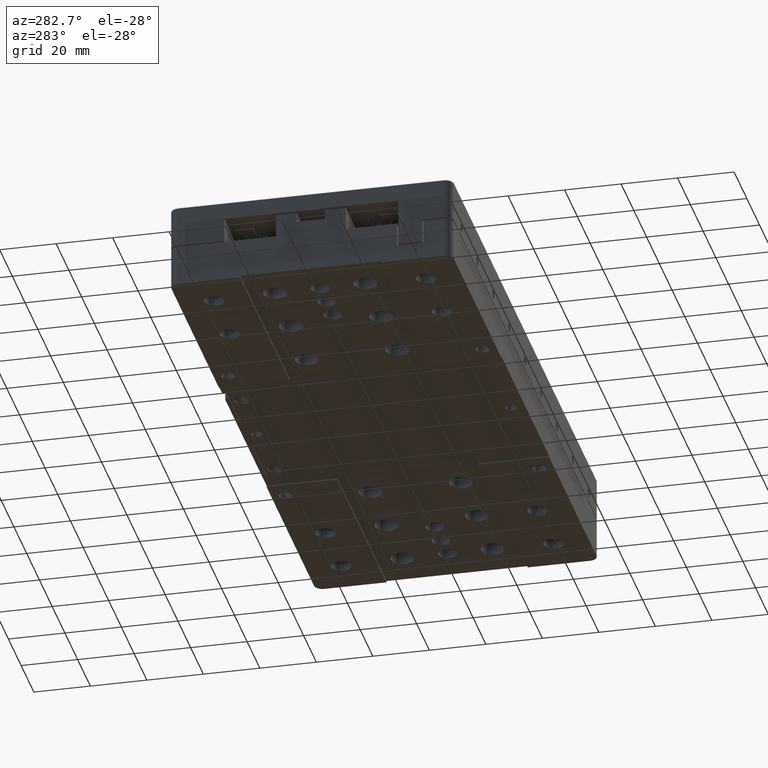
[diagram: clean part render]
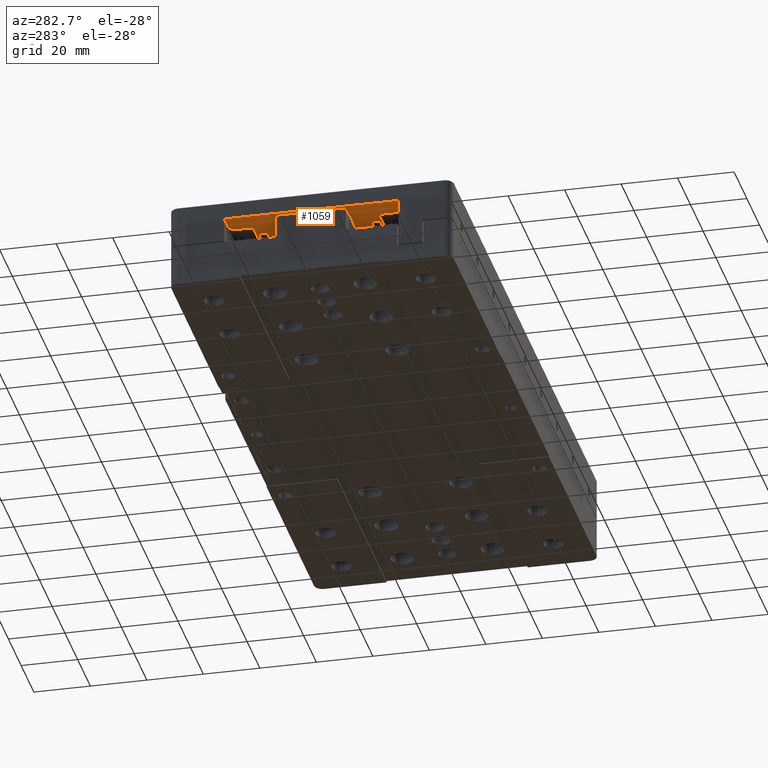
[diagram: same view with one face highlighted and labeled with its STEP entity id]
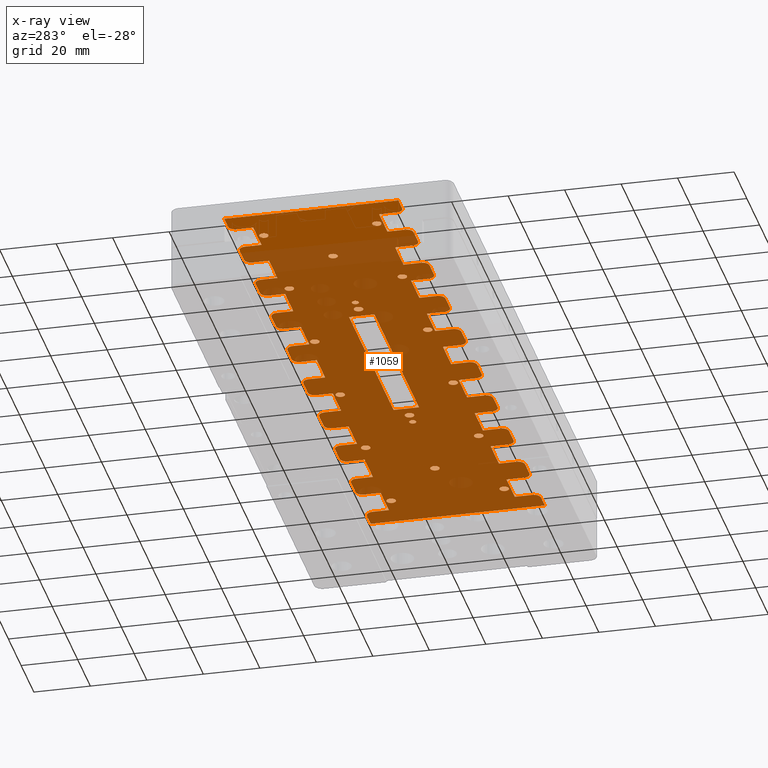
[diagram: x-ray of the same camera — body ghosted, the highlighted face saturated]
A machine part, auxiliary view. The second image highlights one B-rep face of the part: STEP entity #1059.
The next image is the same camera in x-ray: the body ghosted, the highlighted face saturated — about 88% of this face is hidden behind the body in this view.
In plain terms, the highlighted planar face has unit normal (0, 0, -1).
Its self-contained STEP definition (entity closure, byte-faithful):
#18 = LINE ( 'NONE', #21529, #1927 ) ;
#22 = EDGE_CURVE ( 'NONE', #23455, #15507, #9011, .T. ) ;
#27 = DIRECTION ( 'NONE',  ( 0.000000000000000000, 0.000000000000000000, 1.000000000000000000 ) ) ;
#68 = DIRECTION ( 'NONE',  ( -1.000000000000000000, 0.000000000000000000, 0.000000000000000000 ) ) ;
#98 = ORIENTED_EDGE ( 'NONE', *, *, #14441, .T. ) ;
#107 = LINE ( 'NONE', #8944, #10253 ) ;
#122 = EDGE_CURVE ( 'NONE', #9365, #9052, #6889, .T. ) ;
#127 = VERTEX_POINT ( 'NONE', #15840 ) ;
#189 = ORIENTED_EDGE ( 'NONE', *, *, #2611, .T. ) ;
#204 = CARTESIAN_POINT ( 'NONE',  ( 93.50000000000001421, -22.30000000000000071, 9.000000000000001776 ) ) ;
#206 = CIRCLE ( 'NONE', #6590, 2.500000000000002220 ) ;
#238 = DIRECTION ( 'NONE',  ( -1.000000000000000000, 0.000000000000000000, -0.000000000000000000 ) ) ;
#265 = CARTESIAN_POINT ( 'NONE',  ( 41.00000000000000000, -28.50000000000000000, 9.000000000000001776 ) ) ;
#296 = ORIENTED_EDGE ( 'NONE', *, *, #27615, .T. ) ;
#332 = EDGE_CURVE ( 'NONE', #17385, #21648, #14257, .T. ) ;
#352 = EDGE_CURVE ( 'NONE', #10990, #4657, #20627, .T. ) ;
#360 = CARTESIAN_POINT ( 'NONE',  ( -31.50000000000000000, 22.30000000000000071, 9.000000000000001776 ) ) ;
#362 = VECTOR ( 'NONE', #9994, 1000.000000000000000 ) ;
#365 = CARTESIAN_POINT ( 'NONE',  ( -59.00000000000000711, -28.50000000000000000, 9.000000000000001776 ) ) ;
#368 = DIRECTION ( 'NONE',  ( 1.000000000000000000, 0.000000000000000000, 0.000000000000000000 ) ) ;
#389 = LINE ( 'NONE', #9361, #3427 ) ;
#392 = VERTEX_POINT ( 'NONE', #28044 ) ;
#453 = CIRCLE ( 'NONE', #16361, 1.649999999999998579 ) ;
#538 = VERTEX_POINT ( 'NONE', #24342 ) ;
#550 = DIRECTION ( 'NONE',  ( 0.000000000000000000, 0.000000000000000000, 1.000000000000000000 ) ) ;
#557 = CARTESIAN_POINT ( 'NONE',  ( -6.500000000000004441, -22.30000000000000071, 9.000000000000001776 ) ) ;
#630 = EDGE_CURVE ( 'NONE', #3418, #22998, #24322, .T. ) ;
#662 = VECTOR ( 'NONE', #27494, 1000.000000000000000 ) ;
#702 = CIRCLE ( 'NONE', #24383, 2.500000000000002220 ) ;
#707 = ORIENTED_EDGE ( 'NONE', *, *, #18799, .T. ) ;
#769 = EDGE_CURVE ( 'NONE', #13182, #3418, #13206, .T. ) ;
#842 = CARTESIAN_POINT ( 'NONE',  ( -84.00000000000000000, 28.10000000000000497, 9.000000000000001776 ) ) ;
#878 = DIRECTION ( 'NONE',  ( -0.000000000000000000, -1.000000000000000000, -0.000000000000000000 ) ) ;
#898 = ORIENTED_EDGE ( 'NONE', *, *, #2168, .T. ) ;
#901 = AXIS2_PLACEMENT_3D ( 'NONE', #14249, #3853, #19091 ) ;
#930 = CIRCLE ( 'NONE', #22765, 2.500000000000000444 ) ;
#941 = CARTESIAN_POINT ( 'NONE',  ( -115.0000000000000000, 30.60000000000000142, 9.000000000000001776 ) ) ;
#998 = EDGE_CURVE ( 'NONE', #18939, #18939, #8822, .T. ) ;
#1027 = VECTOR ( 'NONE', #11967, 1000.000000000000000 ) ;
#1030 = VERTEX_POINT ( 'NONE', #18742 ) ;
#1034 = LINE ( 'NONE', #27092, #9080 ) ;
#1045 = AXIS2_PLACEMENT_3D ( 'NONE', #10245, #1268, #18508 ) ;
#1059 = ADVANCED_FACE ( 'NONE', ( #24869, #22727, #21173, #3224, #11910, #9764, #25007, #16613, #27556, #22866, #23287, #16745, #18463, #8055, #9900, #27122, #5504, #18598, #3787, #3504 ), #3363, .T. ) ;
#1096 = DIRECTION ( 'NONE',  ( -0.000000000000000000, -1.000000000000000000, -0.000000000000000000 ) ) ;
#1116 = CIRCLE ( 'NONE', #21582, 1.649999999999998579 ) ;
#1173 = VERTEX_POINT ( 'NONE', #6208 ) ;
#1191 = CARTESIAN_POINT ( 'NONE',  ( 45.00000000000000000, 0.000000000000000000, 9.000000000000001776 ) ) ;
#1268 = DIRECTION ( 'NONE',  ( 0.000000000000000000, 0.000000000000000000, -1.000000000000000000 ) ) ;
#1304 = VERTEX_POINT ( 'NONE', #7713 ) ;
#1314 = VECTOR ( 'NONE', #2842, 1000.000000000000000 ) ;
#1318 = VECTOR ( 'NONE', #18420, 1000.000000000000000 ) ;
#1351 = VECTOR ( 'NONE', #26824, 1000.000000000000000 ) ;
#1395 = EDGE_CURVE ( 'NONE', #18982, #17710, #5995, .T. ) ;
#1411 = VECTOR ( 'NONE', #2039, 1000.000000000000000 ) ;
#1418 = CARTESIAN_POINT ( 'NONE',  ( 68.50000000000000000, -28.50000000000000000, 9.000000000000001776 ) ) ;
#1455 = CARTESIAN_POINT ( 'NONE',  ( 106.5000000000000000, 28.10000000000000142, 9.000000000000001776 ) ) ;
#1491 = CARTESIAN_POINT ( 'NONE',  ( -98.35000000000000853, 20.00000000000000000, 9.000000000000001776 ) ) ;
#1512 = CIRCLE ( 'NONE', #4237, 2.500000000000002220 ) ;
#1521 = EDGE_CURVE ( 'NONE', #17222, #17222, #1116, .T. ) ;
#1532 = CARTESIAN_POINT ( 'NONE',  ( 56.50000000000000711, -50.00000000000000000, 9.000000000000001776 ) ) ;
#1538 = CARTESIAN_POINT ( 'NONE',  ( -115.0000000000000000, 22.30000000000000071, 9.000000000000001776 ) ) ;
#1552 = VECTOR ( 'NONE', #2566, 1000.000000000000000 ) ;
#1622 = DIRECTION ( 'NONE',  ( -0.000000000000000000, -1.000000000000000000, -0.000000000000000000 ) ) ;
#1635 = ORIENTED_EDGE ( 'NONE', *, *, #10877, .T. ) ;
#1676 = DIRECTION ( 'NONE',  ( -1.000000000000000000, 0.000000000000000000, 0.000000000000000000 ) ) ;
#1723 = ORIENTED_EDGE ( 'NONE', *, *, #15293, .T. ) ;
#1727 = CARTESIAN_POINT ( 'NONE',  ( -68.50000000000000000, -22.30000000000000071, 9.000000000000001776 ) ) ;
#1748 = LINE ( 'NONE', #10864, #1411 ) ;
#1752 = CARTESIAN_POINT ( 'NONE',  ( -68.50000000000000000, 22.30000000000000071, 9.000000000000001776 ) ) ;
#1758 = ORIENTED_EDGE ( 'NONE', *, *, #6352, .T. ) ;
#1773 = CIRCLE ( 'NONE', #5890, 2.500000000000002220 ) ;
#1784 = CARTESIAN_POINT ( 'NONE',  ( 109.0000000000000000, 28.10000000000000497, 9.000000000000001776 ) ) ;
#1786 = VECTOR ( 'NONE', #9501, 1000.000000000000000 ) ;
#1803 = DIRECTION ( 'NONE',  ( -1.000000000000000000, 0.000000000000000000, -0.000000000000000000 ) ) ;
#1810 = VERTEX_POINT ( 'NONE', #14783 ) ;
#1819 = CIRCLE ( 'NONE', #901, 1.649999999999998579 ) ;
#1864 = VERTEX_POINT ( 'NONE', #18638 ) ;
#1883 = VECTOR ( 'NONE', #11152, 1000.000000000000000 ) ;
#1915 = EDGE_CURVE ( 'NONE', #23801, #8846, #16916, .T. ) ;
#1927 = VECTOR ( 'NONE', #21813, 1000.000000000000000 ) ;
#1938 = DIRECTION ( 'NONE',  ( 0.000000000000000000, 0.000000000000000000, -1.000000000000000000 ) ) ;
#1968 = LINE ( 'NONE', #10653, #6343 ) ;
#1991 = CARTESIAN_POINT ( 'NONE',  ( -115.0000000000000000, 22.30000000000000071, 9.000000000000001776 ) ) ;
#2001 = AXIS2_PLACEMENT_3D ( 'NONE', #15529, #24219, #4855 ) ;
#2039 = DIRECTION ( 'NONE',  ( -1.000000000000000000, 0.000000000000000000, -0.000000000000000000 ) ) ;
#2080 = ORIENTED_EDGE ( 'NONE', *, *, #7572, .T. ) ;
#2091 = ORIENTED_EDGE ( 'NONE', *, *, #3287, .T. ) ;
#2098 = CARTESIAN_POINT ( 'NONE',  ( -81.50000000000000000, -28.50000000000000000, 9.000000000000001776 ) ) ;
#2120 = CARTESIAN_POINT ( 'NONE',  ( 43.75000000000000000, 0.000000000000000000, 9.000000000000001776 ) ) ;
#2168 = EDGE_CURVE ( 'NONE', #13780, #8060, #9329, .T. ) ;
#2208 = CARTESIAN_POINT ( 'NONE',  ( -115.0000000000000000, 4.500000000000003553, 9.000000000000001776 ) ) ;
#2210 = VECTOR ( 'NONE', #1622, 1000.000000000000000 ) ;
#2221 = EDGE_CURVE ( 'NONE', #4857, #25750, #23015, .T. ) ;
#2223 = DIRECTION ( 'NONE',  ( -1.000000000000000000, 0.000000000000000000, 0.000000000000000000 ) ) ;
#2230 = CARTESIAN_POINT ( 'NONE',  ( 115.0000000000000000, 0.000000000000000000, 9.000000000000001776 ) ) ;
#2232 = VECTOR ( 'NONE', #27058, 1000.000000000000000 ) ;
#2299 = EDGE_CURVE ( 'NONE', #7628, #12323, #17069, .T. ) ;
#2343 = EDGE_CURVE ( 'NONE', #14549, #7718, #702, .T. ) ;
#2401 = EDGE_CURVE ( 'NONE', #5867, #26751, #15175, .T. ) ;
#2404 = LINE ( 'NONE', #4399, #17721 ) ;
#2412 = ORIENTED_EDGE ( 'NONE', *, *, #4634, .T. ) ;
#2427 = VERTEX_POINT ( 'NONE', #13880 ) ;
#2470 = CARTESIAN_POINT ( 'NONE',  ( -115.0000000000000000, 22.30000000000000071, 9.000000000000001776 ) ) ;
#2509 = CARTESIAN_POINT ( 'NONE',  ( -31.50000000000000000, 28.10000000000000142, 9.000000000000001776 ) ) ;
#2521 = LINE ( 'NONE', #2230, #7740 ) ;
#2531 = EDGE_CURVE ( 'NONE', #27582, #28079, #11185, .T. ) ;
#2564 = EDGE_LOOP ( 'NONE', ( #14612 ) ) ;
#2566 = DIRECTION ( 'NONE',  ( -1.000000000000000000, 0.000000000000000000, -0.000000000000000000 ) ) ;
#2581 = CARTESIAN_POINT ( 'NONE',  ( 6.500000000000003553, -28.50000000000000000, 9.000000000000001776 ) ) ;
#2611 = EDGE_CURVE ( 'NONE', #6259, #6259, #9797, .T. ) ;
#2677 = LINE ( 'NONE', #13635, #23484 ) ;
#2689 = CARTESIAN_POINT ( 'NONE',  ( -78.35000000000000853, 0.000000000000000000, 9.000000000000001776 ) ) ;
#2745 = DIRECTION ( 'NONE',  ( -1.000000000000000000, 0.000000000000000000, 0.000000000000000000 ) ) ;
#2770 = DIRECTION ( 'NONE',  ( 0.000000000000000000, 0.000000000000000000, -1.000000000000000000 ) ) ;
#2842 = DIRECTION ( 'NONE',  ( -0.000000000000000000, -1.000000000000000000, -0.000000000000000000 ) ) ;
#2868 = DIRECTION ( 'NONE',  ( 1.000000000000000000, 0.000000000000000000, 0.000000000000000000 ) ) ;
#2878 = DIRECTION ( 'NONE',  ( -1.000000000000000000, 0.000000000000000000, -0.000000000000000000 ) ) ;
#2974 = CARTESIAN_POINT ( 'NONE',  ( -56.50000000000000000, -28.50000000000000000, 9.000000000000001776 ) ) ;
#2997 = CARTESIAN_POINT ( 'NONE',  ( -115.0000000000000000, 30.60000000000000142, 9.000000000000001776 ) ) ;
#3018 = EDGE_CURVE ( 'NONE', #20708, #18531, #3686, .T. ) ;
#3037 = LINE ( 'NONE', #11723, #18688 ) ;
#3045 = CARTESIAN_POINT ( 'NONE',  ( 18.50000000000000355, 28.10000000000000142, 9.000000000000001776 ) ) ;
#3072 = CARTESIAN_POINT ( 'NONE',  ( 9.000000000000000000, 30.60000000000000142, 9.000000000000001776 ) ) ;
#3106 = CARTESIAN_POINT ( 'NONE',  ( -31.50000000000000000, -50.00000000000000000, 9.000000000000001776 ) ) ;
#3113 = DIRECTION ( 'NONE',  ( 0.000000000000000000, 1.000000000000000000, 0.000000000000000000 ) ) ;
#3117 = DIRECTION ( 'NONE',  ( 0.000000000000000000, 1.000000000000000000, 0.000000000000000000 ) ) ;
#3124 = ORIENTED_EDGE ( 'NONE', *, *, #27309, .T. ) ;
#3183 = CARTESIAN_POINT ( 'NONE',  ( 18.50000000000000355, -50.00000000000000000, 9.000000000000001776 ) ) ;
#3184 = CARTESIAN_POINT ( 'NONE',  ( -34.00000000000000000, 30.60000000000000142, 9.000000000000001776 ) ) ;
#3189 = CARTESIAN_POINT ( 'NONE',  ( 20.00000000000000000, 20.00000000000000000, 9.000000000000001776 ) ) ;
#3224 = FACE_BOUND ( 'NONE', #6728, .T. ) ;
#3225 = CIRCLE ( 'NONE', #22776, 1.649999999999998579 ) ;
#3229 = ORIENTED_EDGE ( 'NONE', *, *, #26929, .T. ) ;
#3242 = CARTESIAN_POINT ( 'NONE',  ( 31.50000000000001421, -50.00000000000000000, 9.000000000000001776 ) ) ;
#3244 = DIRECTION ( 'NONE',  ( 0.000000000000000000, 1.000000000000000000, 0.000000000000000000 ) ) ;
#3258 = AXIS2_PLACEMENT_3D ( 'NONE', #5620, #27102, #15882 ) ;
#3261 = ORIENTED_EDGE ( 'NONE', *, *, #12059, .T. ) ;
#3263 = CARTESIAN_POINT ( 'NONE',  ( -68.50000000000000000, -50.00000000000000000, 9.000000000000001776 ) ) ;
#3266 = EDGE_LOOP ( 'NONE', ( #12298 ) ) ;
#3287 = EDGE_CURVE ( 'NONE', #23906, #13357, #2677, .T. ) ;
#3321 = ORIENTED_EDGE ( 'NONE', *, *, #23423, .T. ) ;
#3335 = DIRECTION ( 'NONE',  ( -0.000000000000000000, -1.000000000000000000, -0.000000000000000000 ) ) ;
#3353 = CARTESIAN_POINT ( 'NONE',  ( -66.00000000000000000, -28.50000000000000000, 9.000000000000001776 ) ) ;
#3363 = PLANE ( 'NONE',  #9722 ) ;
#3381 = CARTESIAN_POINT ( 'NONE',  ( 56.50000000000000711, 22.30000000000000071, 9.000000000000001776 ) ) ;
#3391 = CARTESIAN_POINT ( 'NONE',  ( 6.500000000000005329, -50.00000000000000000, 9.000000000000001776 ) ) ;
#3394 = EDGE_CURVE ( 'NONE', #4595, #17385, #7105, .T. ) ;
#3395 = DIRECTION ( 'NONE',  ( 1.000000000000000000, -0.000000000000000000, 0.000000000000000000 ) ) ;
#3401 = VECTOR ( 'NONE', #11252, 1000.000000000000000 ) ;
#3418 = VERTEX_POINT ( 'NONE', #5932 ) ;
#3427 = VECTOR ( 'NONE', #7236, 1000.000000000000000 ) ;
#3435 = CARTESIAN_POINT ( 'NONE',  ( -115.0000000000000000, 30.60000000000000142, 9.000000000000001776 ) ) ;
#3477 = LINE ( 'NONE', #22702, #7202 ) ;
#3504 = FACE_OUTER_BOUND ( 'NONE', #18201, .T. ) ;
#3563 = ORIENTED_EDGE ( 'NONE', *, *, #2401, .T. ) ;
#3573 = DIRECTION ( 'NONE',  ( 0.000000000000000000, 0.000000000000000000, -1.000000000000000000 ) ) ;
#3577 = ORIENTED_EDGE ( 'NONE', *, *, #11302, .T. ) ;
#3624 = DIRECTION ( 'NONE',  ( -1.000000000000000000, 0.000000000000000000, 0.000000000000000000 ) ) ;
#3628 = AXIS2_PLACEMENT_3D ( 'NONE', #17767, #28132, #368 ) ;
#3660 = CARTESIAN_POINT ( 'NONE',  ( 9.000000000000001776, -28.50000000000000000, 9.000000000000001776 ) ) ;
#3667 = VERTEX_POINT ( 'NONE', #27141 ) ;
#3686 = LINE ( 'NONE', #16118, #18926 ) ;
#3718 = ORIENTED_EDGE ( 'NONE', *, *, #17010, .T. ) ;
#3720 = CARTESIAN_POINT ( 'NONE',  ( -115.0000000000000000, 30.60000000000000142, 9.000000000000001776 ) ) ;
#3743 = DIRECTION ( 'NONE',  ( 0.000000000000000000, 0.000000000000000000, -1.000000000000000000 ) ) ;
#3787 = FACE_BOUND ( 'NONE', #6438, .T. ) ;
#3817 = CARTESIAN_POINT ( 'NONE',  ( -115.0000000000000000, 30.60000000000000142, 9.000000000000001776 ) ) ;
#3824 = CARTESIAN_POINT ( 'NONE',  ( -41.00000000000000000, 28.10000000000000497, 9.000000000000001776 ) ) ;
#3853 = DIRECTION ( 'NONE',  ( 0.000000000000000000, 0.000000000000000000, 1.000000000000000000 ) ) ;
#3865 = CARTESIAN_POINT ( 'NONE',  ( 43.50000000000000000, -50.00000000000000000, 9.000000000000001776 ) ) ;
#3948 = LINE ( 'NONE', #10771, #17198 ) ;
#3956 = ORIENTED_EDGE ( 'NONE', *, *, #5029, .T. ) ;
#3974 = VECTOR ( 'NONE', #3117, 1000.000000000000000 ) ;
#3995 = DIRECTION ( 'NONE',  ( -0.000000000000000000, -1.000000000000000000, -0.000000000000000000 ) ) ;
#4004 = EDGE_CURVE ( 'NONE', #7486, #17142, #9819, .T. ) ;
#4011 = ORIENTED_EDGE ( 'NONE', *, *, #4444, .T. ) ;
#4019 = DIRECTION ( 'NONE',  ( 1.000000000000000000, -0.000000000000000000, 0.000000000000000000 ) ) ;
#4045 = ORIENTED_EDGE ( 'NONE', *, *, #13705, .T. ) ;
#4072 = VERTEX_POINT ( 'NONE', #1418 ) ;
#4129 = ORIENTED_EDGE ( 'NONE', *, *, #18428, .T. ) ;
#4199 = DIRECTION ( 'NONE',  ( 0.000000000000000000, 0.000000000000000000, -1.000000000000000000 ) ) ;
#4208 = EDGE_CURVE ( 'NONE', #7623, #7623, #17630, .T. ) ;
#4237 = AXIS2_PLACEMENT_3D ( 'NONE', #12557, #3743, #25522 ) ;
#4298 = DIRECTION ( 'NONE',  ( 0.000000000000000000, 0.000000000000000000, -1.000000000000000000 ) ) ;
#4312 = AXIS2_PLACEMENT_3D ( 'NONE', #842, #9535, #26903 ) ;
#4321 = DIRECTION ( 'NONE',  ( -0.000000000000000000, -1.000000000000000000, -0.000000000000000000 ) ) ;
#4350 = CARTESIAN_POINT ( 'NONE',  ( -115.0000000000000000, 22.30000000000000071, 9.000000000000001776 ) ) ;
#4356 = DIRECTION ( 'NONE',  ( 0.000000000000000000, 0.000000000000000000, -1.000000000000000000 ) ) ;
#4374 = LINE ( 'NONE', #11196, #7061 ) ;
#4399 = CARTESIAN_POINT ( 'NONE',  ( -115.0000000000000000, 22.30000000000000071, 9.000000000000001776 ) ) ;
#4444 = EDGE_CURVE ( 'NONE', #18570, #23624, #27431, .T. ) ;
#4536 = ORIENTED_EDGE ( 'NONE', *, *, #19574, .T. ) ;
#4539 = VECTOR ( 'NONE', #19441, 1000.000000000000000 ) ;
#4547 = EDGE_CURVE ( 'NONE', #28079, #15486, #16485, .T. ) ;
#4562 = CARTESIAN_POINT ( 'NONE',  ( 81.50000000000000000, -28.50000000000000000, 9.000000000000001776 ) ) ;
#4595 = VERTEX_POINT ( 'NONE', #13047 ) ;
#4634 = EDGE_CURVE ( 'NONE', #14339, #1304, #21325, .T. ) ;
#4641 = ORIENTED_EDGE ( 'NONE', *, *, #23066, .T. ) ;
#4642 = CARTESIAN_POINT ( 'NONE',  ( -115.0000000000000000, 30.60000000000000142, 9.000000000000001776 ) ) ;
#4657 = VERTEX_POINT ( 'NONE', #6084 ) ;
#4668 = CIRCLE ( 'NONE', #27839, 2.500000000000002220 ) ;
#4680 = EDGE_CURVE ( 'NONE', #1173, #15325, #10630, .T. ) ;
#4683 = DIRECTION ( 'NONE',  ( -1.000000000000000000, 0.000000000000000000, 0.000000000000000000 ) ) ;
#4701 = ORIENTED_EDGE ( 'NONE', *, *, #1395, .T. ) ;
#4722 = VERTEX_POINT ( 'NONE', #11056 ) ;
#4855 = DIRECTION ( 'NONE',  ( -1.000000000000000000, 0.000000000000000000, 0.000000000000000000 ) ) ;
#4857 = VERTEX_POINT ( 'NONE', #9612 ) ;
#4875 = EDGE_CURVE ( 'NONE', #1030, #23589, #24553, .T. ) ;
#4893 = EDGE_CURVE ( 'NONE', #17881, #2427, #22718, .T. ) ;
#4900 = CARTESIAN_POINT ( 'NONE',  ( 106.5000000000000000, -50.00000000000000000, 9.000000000000001776 ) ) ;
#4917 = VECTOR ( 'NONE', #19330, 1000.000000000000000 ) ;
#4928 = AXIS2_PLACEMENT_3D ( 'NONE', #3353, #9891, #26979 ) ;
#4935 = CARTESIAN_POINT ( 'NONE',  ( -109.0000000000000000, 28.10000000000000497, 9.000000000000001776 ) ) ;
#4951 = EDGE_CURVE ( 'NONE', #22633, #17921, #16175, .T. ) ;
#4953 = DIRECTION ( 'NONE',  ( -0.000000000000000000, -1.000000000000000000, -0.000000000000000000 ) ) ;
#4969 = ORIENTED_EDGE ( 'NONE', *, *, #12118, .T. ) ;
#4974 = CARTESIAN_POINT ( 'NONE',  ( -20.00000000000000000, 20.00000000000000000, 9.000000000000001776 ) ) ;
#5015 = DIRECTION ( 'NONE',  ( -1.000000000000000000, 0.000000000000000000, -0.000000000000000000 ) ) ;
#5029 = EDGE_CURVE ( 'NONE', #538, #538, #7707, .T. ) ;
#5109 = AXIS2_PLACEMENT_3D ( 'NONE', #24212, #13378, #9651 ) ;
#5132 = LINE ( 'NONE', #24642, #17386 ) ;
#5148 = VERTEX_POINT ( 'NONE', #20524 ) ;
#5149 = CARTESIAN_POINT ( 'NONE',  ( -91.00000000000000000, -28.50000000000000000, 9.000000000000001776 ) ) ;
#5221 = CARTESIAN_POINT ( 'NONE',  ( -115.0000000000000000, -22.30000000000000071, 9.000000000000001776 ) ) ;
#5245 = VECTOR ( 'NONE', #16324, 1000.000000000000000 ) ;
#5268 = ORIENTED_EDGE ( 'NONE', *, *, #2531, .T. ) ;
#5286 = CARTESIAN_POINT ( 'NONE',  ( -34.00000000000000000, 28.10000000000000497, 9.000000000000001776 ) ) ;
#5300 = EDGE_CURVE ( 'NONE', #9089, #9089, #1819, .T. ) ;
#5311 = LINE ( 'NONE', #4900, #20500 ) ;
#5314 = ORIENTED_EDGE ( 'NONE', *, *, #19927, .T. ) ;
#5366 = VERTEX_POINT ( 'NONE', #27761 ) ;
#5374 = AXIS2_PLACEMENT_3D ( 'NONE', #8631, #24305, #6655 ) ;
#5383 = ORIENTED_EDGE ( 'NONE', *, *, #10186, .T. ) ;
#5419 = CARTESIAN_POINT ( 'NONE',  ( -115.0000000000000000, -22.30000000000000071, 9.000000000000001776 ) ) ;
#5424 = CARTESIAN_POINT ( 'NONE',  ( 91.00000000000000000, 28.10000000000000497, 9.000000000000001776 ) ) ;
#5426 = CARTESIAN_POINT ( 'NONE',  ( 56.50000000000000711, -50.00000000000000000, 9.000000000000001776 ) ) ;
#5471 = VECTOR ( 'NONE', #24534, 1000.000000000000000 ) ;
#5487 = EDGE_CURVE ( 'NONE', #20207, #20207, #453, .T. ) ;
#5495 = CARTESIAN_POINT ( 'NONE',  ( -16.00000000000000000, -28.50000000000000000, 9.000000000000001776 ) ) ;
#5504 = FACE_BOUND ( 'NONE', #10957, .T. ) ;
#5508 = ORIENTED_EDGE ( 'NONE', *, *, #4547, .T. ) ;
#5529 = CARTESIAN_POINT ( 'NONE',  ( 35.00000000000001421, -4.500000000000003553, 9.000000000000001776 ) ) ;
#5532 = VERTEX_POINT ( 'NONE', #4562 ) ;
#5535 = CIRCLE ( 'NONE', #27804, 2.500000000000002220 ) ;
#5563 = DIRECTION ( 'NONE',  ( -1.000000000000000000, 0.000000000000000000, 0.000000000000000000 ) ) ;
#5578 = ORIENTED_EDGE ( 'NONE', *, *, #16800, .T. ) ;
#5582 = EDGE_CURVE ( 'NONE', #25004, #13107, #17805, .T. ) ;
#5591 = ORIENTED_EDGE ( 'NONE', *, *, #2343, .T. ) ;
#5608 = DIRECTION ( 'NONE',  ( 1.000000000000000000, 0.000000000000000000, 0.000000000000000000 ) ) ;
#5620 = CARTESIAN_POINT ( 'NONE',  ( -66.00000000000000000, 28.10000000000000497, 9.000000000000001776 ) ) ;
#5635 = ORIENTED_EDGE ( 'NONE', *, *, #2221, .T. ) ;
#5714 = ORIENTED_EDGE ( 'NONE', *, *, #12580, .T. ) ;
#5724 = CARTESIAN_POINT ( 'NONE',  ( 43.50000000000000000, -50.00000000000000000, 9.000000000000001776 ) ) ;
#5737 = EDGE_CURVE ( 'NONE', #16670, #1173, #20620, .T. ) ;
#5743 = VERTEX_POINT ( 'NONE', #10419 ) ;
#5777 = DIRECTION ( 'NONE',  ( -1.000000000000000000, 0.000000000000000000, -0.000000000000000000 ) ) ;
#5786 = DIRECTION ( 'NONE',  ( -1.000000000000000000, 0.000000000000000000, -0.000000000000000000 ) ) ;
#5801 = VERTEX_POINT ( 'NONE', #25450 ) ;
#5803 = VECTOR ( 'NONE', #1096, 1000.000000000000000 ) ;
#5815 = VERTEX_POINT ( 'NONE', #14208 ) ;
#5843 = VERTEX_POINT ( 'NONE', #2098 ) ;
#5867 = VERTEX_POINT ( 'NONE', #23458 ) ;
#5890 = AXIS2_PLACEMENT_3D ( 'NONE', #8668, #19491, #4683 ) ;
#5892 = ORIENTED_EDGE ( 'NONE', *, *, #9702, .T. ) ;
#5899 = AXIS2_PLACEMENT_3D ( 'NONE', #5495, #12040, #18733 ) ;
#5919 = DIRECTION ( 'NONE',  ( 1.000000000000000000, 0.000000000000000000, 0.000000000000000000 ) ) ;
#5932 = CARTESIAN_POINT ( 'NONE',  ( 93.50000000000000000, -28.50000000000000000, 9.000000000000001776 ) ) ;
#5935 = CARTESIAN_POINT ( 'NONE',  ( -115.0000000000000000, -22.30000000000000071, 9.000000000000001776 ) ) ;
#5964 = ORIENTED_EDGE ( 'NONE', *, *, #17321, .T. ) ;
#5970 = EDGE_CURVE ( 'NONE', #12310, #12310, #18179, .T. ) ;
#5990 = CIRCLE ( 'NONE', #25095, 2.500000000000002220 ) ;
#5994 = CARTESIAN_POINT ( 'NONE',  ( 16.00000000000000000, 28.10000000000000497, 9.000000000000001776 ) ) ;
#5995 = LINE ( 'NONE', #3865, #22475 ) ;
#6001 = CIRCLE ( 'NONE', #15386, 1.649999999999998579 ) ;
#6046 = VECTOR ( 'NONE', #16092, 1000.000000000000000 ) ;
#6050 = EDGE_CURVE ( 'NONE', #7281, #5148, #15625, .T. ) ;
#6084 = CARTESIAN_POINT ( 'NONE',  ( -6.500000000000003553, 28.10000000000000497, 9.000000000000001776 ) ) ;
#6099 = DIRECTION ( 'NONE',  ( 0.000000000000000000, 0.000000000000000000, -1.000000000000000000 ) ) ;
#6193 = CARTESIAN_POINT ( 'NONE',  ( -18.35000000000000142, -20.00000000000000000, 9.000000000000001776 ) ) ;
#6208 = CARTESIAN_POINT ( 'NONE',  ( 6.500000000000005329, -22.30000000000000071, 9.000000000000001776 ) ) ;
#6259 = VERTEX_POINT ( 'NONE', #2120 ) ;
#6269 = CARTESIAN_POINT ( 'NONE',  ( 34.00000000000000711, -31.00000000000000000, 9.000000000000001776 ) ) ;
#6293 = DIRECTION ( 'NONE',  ( -1.000000000000000000, 0.000000000000000000, -0.000000000000000000 ) ) ;
#6307 = CARTESIAN_POINT ( 'NONE',  ( -93.50000000000000000, -22.30000000000000071, 9.000000000000001776 ) ) ;
#6343 = VECTOR ( 'NONE', #19355, 1000.000000000000000 ) ;
#6346 = DIRECTION ( 'NONE',  ( -1.000000000000000000, 0.000000000000000000, 0.000000000000000000 ) ) ;
#6351 = EDGE_CURVE ( 'NONE', #21867, #5532, #16812, .T. ) ;
#6352 = EDGE_CURVE ( 'NONE', #22695, #12212, #25707, .T. ) ;
#6353 = VERTEX_POINT ( 'NONE', #25562 ) ;
#6438 = EDGE_LOOP ( 'NONE', ( #98 ) ) ;
#6497 = DIRECTION ( 'NONE',  ( 0.000000000000000000, 0.000000000000000000, -1.000000000000000000 ) ) ;
#6501 = VERTEX_POINT ( 'NONE', #11461 ) ;
#6515 = CARTESIAN_POINT ( 'NONE',  ( -115.0000000000000000, -22.30000000000000071, 9.000000000000001776 ) ) ;
#6524 = VECTOR ( 'NONE', #18847, 1000.000000000000000 ) ;
#6541 = CARTESIAN_POINT ( 'NONE',  ( 68.49999999999998579, -50.00000000000000000, 9.000000000000001776 ) ) ;
#6554 = VERTEX_POINT ( 'NONE', #26200 ) ;
#6560 = DIRECTION ( 'NONE',  ( 0.000000000000000000, 0.000000000000000000, 1.000000000000000000 ) ) ;
#6573 = ORIENTED_EDGE ( 'NONE', *, *, #5970, .T. ) ;
#6590 = AXIS2_PLACEMENT_3D ( 'NONE', #24271, #2770, #13985 ) ;
#6655 = DIRECTION ( 'NONE',  ( -1.000000000000000000, 0.000000000000000000, 0.000000000000000000 ) ) ;
#6677 = EDGE_CURVE ( 'NONE', #2427, #5843, #1034, .T. ) ;
#6719 = EDGE_LOOP ( 'NONE', ( #3321 ) ) ;
#6728 = EDGE_LOOP ( 'NONE', ( #3956 ) ) ;
#6754 = EDGE_CURVE ( 'NONE', #18486, #22226, #10433, .T. ) ;
#6788 = DIRECTION ( 'NONE',  ( 0.000000000000000000, 0.000000000000000000, -1.000000000000000000 ) ) ;
#6839 = DIRECTION ( 'NONE',  ( -0.000000000000000000, -1.000000000000000000, -0.000000000000000000 ) ) ;
#6887 = EDGE_CURVE ( 'NONE', #16892, #6353, #26243, .T. ) ;
#6889 = LINE ( 'NONE', #24667, #23709 ) ;
#6904 = DIRECTION ( 'NONE',  ( 1.000000000000000000, 0.000000000000000000, 0.000000000000000000 ) ) ;
#6910 = EDGE_CURVE ( 'NONE', #17330, #19664, #26104, .T. ) ;
#6912 = DIRECTION ( 'NONE',  ( -0.000000000000000000, -0.000000000000000000, 1.000000000000000000 ) ) ;
#6976 = LINE ( 'NONE', #11522, #11045 ) ;
#7021 = DIRECTION ( 'NONE',  ( 0.000000000000000000, 0.000000000000000000, 1.000000000000000000 ) ) ;
#7061 = VECTOR ( 'NONE', #17619, 1000.000000000000000 ) ;
#7073 = VERTEX_POINT ( 'NONE', #13203 ) ;
#7105 = LINE ( 'NONE', #23442, #21224 ) ;
#7126 = LINE ( 'NONE', #7391, #1552 ) ;
#7146 = EDGE_LOOP ( 'NONE', ( #27299 ) ) ;
#7202 = VECTOR ( 'NONE', #3335, 1000.000000000000000 ) ;
#7223 = CARTESIAN_POINT ( 'NONE',  ( 93.50000000000001421, 22.30000000000000071, 9.000000000000001776 ) ) ;
#7236 = DIRECTION ( 'NONE',  ( 1.000000000000000000, -0.000000000000000000, 0.000000000000000000 ) ) ;
#7249 = CARTESIAN_POINT ( 'NONE',  ( 109.0000000000000000, -31.00000000000000000, 9.000000000000001776 ) ) ;
#7260 = DIRECTION ( 'NONE',  ( 0.000000000000000000, 0.000000000000000000, -1.000000000000000000 ) ) ;
#7281 = VERTEX_POINT ( 'NONE', #11495 ) ;
#7282 = CARTESIAN_POINT ( 'NONE',  ( 60.00000000000000000, 20.00000000000000000, 9.000000000000001776 ) ) ;
#7391 = CARTESIAN_POINT ( 'NONE',  ( -115.0000000000000000, -31.00000000000000000, 9.000000000000001776 ) ) ;
#7424 = DIRECTION ( 'NONE',  ( 0.000000000000000000, 0.000000000000000000, -1.000000000000000000 ) ) ;
#7427 = DIRECTION ( 'NONE',  ( 0.000000000000000000, 0.000000000000000000, -1.000000000000000000 ) ) ;
#7434 = AXIS2_PLACEMENT_3D ( 'NONE', #25487, #14664, #5563 ) ;
#7443 = VECTOR ( 'NONE', #23220, 1000.000000000000000 ) ;
#7470 = DIRECTION ( 'NONE',  ( -0.000000000000000000, -1.000000000000000000, -0.000000000000000000 ) ) ;
#7486 = VERTEX_POINT ( 'NONE', #23433 ) ;
#7515 = LINE ( 'NONE', #941, #19482 ) ;
#7535 = CARTESIAN_POINT ( 'NONE',  ( -115.0000000000000000, 30.60000000000000142, 9.000000000000001776 ) ) ;
#7557 = VERTEX_POINT ( 'NONE', #16229 ) ;
#7563 = CARTESIAN_POINT ( 'NONE',  ( -84.00000000000000000, -31.00000000000000000, 9.000000000000001776 ) ) ;
#7566 = DIRECTION ( 'NONE',  ( 1.000000000000000000, 0.000000000000000000, 0.000000000000000000 ) ) ;
#7572 = EDGE_CURVE ( 'NONE', #25692, #25692, #3225, .T. ) ;
#7585 = ORIENTED_EDGE ( 'NONE', *, *, #21628, .T. ) ;
#7623 = VERTEX_POINT ( 'NONE', #2689 ) ;
#7628 = VERTEX_POINT ( 'NONE', #1455 ) ;
#7648 = VERTEX_POINT ( 'NONE', #25517 ) ;
#7657 = VERTEX_POINT ( 'NONE', #27643 ) ;
#7707 = CIRCLE ( 'NONE', #15457, 1.649999999999998579 ) ;
#7713 = CARTESIAN_POINT ( 'NONE',  ( 106.5000000000000000, -22.30000000000000071, 9.000000000000001776 ) ) ;
#7718 = VERTEX_POINT ( 'NONE', #10133 ) ;
#7740 = VECTOR ( 'NONE', #20039, 1000.000000000000000 ) ;
#7749 = EDGE_CURVE ( 'NONE', #26148, #6501, #1748, .T. ) ;
#7831 = EDGE_CURVE ( 'NONE', #9393, #24216, #14714, .T. ) ;
#7834 = DIRECTION ( 'NONE',  ( 0.000000000000000000, 1.000000000000000000, 0.000000000000000000 ) ) ;
#7841 = ORIENTED_EDGE ( 'NONE', *, *, #4893, .T. ) ;
#7939 = ORIENTED_EDGE ( 'NONE', *, *, #26881, .T. ) ;
#7995 = LINE ( 'NONE', #11980, #8821 ) ;
#8010 = CARTESIAN_POINT ( 'NONE',  ( 43.50000000000000000, 22.30000000000000071, 9.000000000000001776 ) ) ;
#8055 = FACE_BOUND ( 'NONE', #22881, .T. ) ;
#8056 = EDGE_CURVE ( 'NONE', #12782, #7073, #7995, .T. ) ;
#8060 = VERTEX_POINT ( 'NONE', #20815 ) ;
#8096 = ORIENTED_EDGE ( 'NONE', *, *, #10084, .T. ) ;
#8110 = CARTESIAN_POINT ( 'NONE',  ( -31.50000000000000000, -50.00000000000000000, 9.000000000000001776 ) ) ;
#8130 = EDGE_CURVE ( 'NONE', #9052, #22284, #16113, .T. ) ;
#8138 = EDGE_CURVE ( 'NONE', #23624, #11271, #13367, .T. ) ;
#8148 = ORIENTED_EDGE ( 'NONE', *, *, #13920, .T. ) ;
#8163 = DIRECTION ( 'NONE',  ( -1.000000000000000000, 0.000000000000000000, -0.000000000000000000 ) ) ;
#8170 = VECTOR ( 'NONE', #5777, 1000.000000000000000 ) ;
#8193 = DIRECTION ( 'NONE',  ( 0.000000000000000000, 0.000000000000000000, 1.000000000000000000 ) ) ;
#8214 = CARTESIAN_POINT ( 'NONE',  ( -40.99999999999999289, -31.00000000000000000, 9.000000000000001776 ) ) ;
#8247 = EDGE_CURVE ( 'NONE', #18531, #19449, #27004, .T. ) ;
#8272 = EDGE_CURVE ( 'NONE', #4657, #23716, #14817, .T. ) ;
#8277 = LINE ( 'NONE', #14968, #22668 ) ;
#8293 = VECTOR ( 'NONE', #2878, 1000.000000000000000 ) ;
#8341 = AXIS2_PLACEMENT_3D ( 'NONE', #20812, #3573, #21374 ) ;
#8363 = CARTESIAN_POINT ( 'NONE',  ( 106.5000000000000000, -28.50000000000000000, 9.000000000000001776 ) ) ;
#8373 = EDGE_CURVE ( 'NONE', #17142, #14110, #25196, .T. ) ;
#8437 = CARTESIAN_POINT ( 'NONE',  ( -115.0000000000000000, -22.30000000000000071, 9.000000000000001776 ) ) ;
#8453 = CARTESIAN_POINT ( 'NONE',  ( 18.50000000000000355, -50.00000000000000000, 9.000000000000001776 ) ) ;
#8498 = DIRECTION ( 'NONE',  ( 1.000000000000000000, 0.000000000000000000, 0.000000000000000000 ) ) ;
#8509 = CARTESIAN_POINT ( 'NONE',  ( -115.0000000000000000, 22.30000000000000071, 9.000000000000001776 ) ) ;
#8551 = ORIENTED_EDGE ( 'NONE', *, *, #6050, .T. ) ;
#8622 = CARTESIAN_POINT ( 'NONE',  ( 66.00000000000000000, 28.10000000000000497, 9.000000000000001776 ) ) ;
#8624 = CIRCLE ( 'NONE', #12263, 2.500000000000002220 ) ;
#8626 = ORIENTED_EDGE ( 'NONE', *, *, #17121, .T. ) ;
#8631 = CARTESIAN_POINT ( 'NONE',  ( -41.00000000000000000, -28.50000000000000000, 9.000000000000001776 ) ) ;
#8632 = CARTESIAN_POINT ( 'NONE',  ( 56.50000000000000711, -22.30000000000000071, 9.000000000000001776 ) ) ;
#8635 = EDGE_CURVE ( 'NONE', #18867, #5867, #9736, .T. ) ;
#8668 = CARTESIAN_POINT ( 'NONE',  ( 66.00000000000000000, -28.50000000000000000, 9.000000000000001776 ) ) ;
#8692 = CIRCLE ( 'NONE', #16882, 1.649999999999998579 ) ;
#8743 = ORIENTED_EDGE ( 'NONE', *, *, #630, .T. ) ;
#8748 = CIRCLE ( 'NONE', #19210, 2.500000000000002220 ) ;
#8810 = DIRECTION ( 'NONE',  ( 1.000000000000000000, -0.000000000000000000, 0.000000000000000000 ) ) ;
#8821 = VECTOR ( 'NONE', #9558, 1000.000000000000000 ) ;
#8822 = CIRCLE ( 'NONE', #10168, 1.649999999999998579 ) ;
#8846 = VERTEX_POINT ( 'NONE', #13738 ) ;
#8872 = CARTESIAN_POINT ( 'NONE',  ( -6.500000000000005329, -50.00000000000000000, 9.000000000000001776 ) ) ;
#8874 = CARTESIAN_POINT ( 'NONE',  ( 31.50000000000001421, -50.00000000000000000, 9.000000000000001776 ) ) ;
#8910 = ORIENTED_EDGE ( 'NONE', *, *, #25999, .T. ) ;
#8944 = CARTESIAN_POINT ( 'NONE',  ( -81.50000000000000000, -50.00000000000000000, 9.000000000000001776 ) ) ;
#9011 = LINE ( 'NONE', #2470, #1883 ) ;
#9052 = VERTEX_POINT ( 'NONE', #1752 ) ;
#9080 = VECTOR ( 'NONE', #7470, 1000.000000000000000 ) ;
#9089 = VERTEX_POINT ( 'NONE', #17794 ) ;
#9090 = DIRECTION ( 'NONE',  ( -1.000000000000000000, 0.000000000000000000, 0.000000000000000000 ) ) ;
#9134 = VERTEX_POINT ( 'NONE', #26777 ) ;
#9192 = CIRCLE ( 'NONE', #16538, 1.250000000000001110 ) ;
#9209 = CARTESIAN_POINT ( 'NONE',  ( -115.0000000000000000, -22.30000000000000071, 9.000000000000001776 ) ) ;
#9225 = DIRECTION ( 'NONE',  ( -0.000000000000000000, -1.000000000000000000, -0.000000000000000000 ) ) ;
#9240 = VERTEX_POINT ( 'NONE', #19989 ) ;
#9264 = ORIENTED_EDGE ( 'NONE', *, *, #1915, .T. ) ;
#9282 = AXIS2_PLACEMENT_3D ( 'NONE', #20352, #550, #9383 ) ;
#9329 = CIRCLE ( 'NONE', #26162, 2.500000000000002220 ) ;
#9361 = CARTESIAN_POINT ( 'NONE',  ( -115.0000000000000000, -4.500000000000003553, 9.000000000000001776 ) ) ;
#9365 = VERTEX_POINT ( 'NONE', #24942 ) ;
#9383 = DIRECTION ( 'NONE',  ( 1.000000000000000000, 0.000000000000000000, 0.000000000000000000 ) ) ;
#9393 = VERTEX_POINT ( 'NONE', #18968 ) ;
#9421 = AXIS2_PLACEMENT_3D ( 'NONE', #10381, #25910, #15234 ) ;
#9429 = EDGE_CURVE ( 'NONE', #26314, #17648, #16823, .T. ) ;
#9441 = VECTOR ( 'NONE', #22350, 1000.000000000000000 ) ;
#9448 = CARTESIAN_POINT ( 'NONE',  ( -56.50000000000000000, -50.00000000000000000, 9.000000000000001776 ) ) ;
#9478 = CARTESIAN_POINT ( 'NONE',  ( -35.00000000000000000, -4.500000000000003553, 9.000000000000001776 ) ) ;
#9500 = ORIENTED_EDGE ( 'NONE', *, *, #13322, .T. ) ;
#9501 = DIRECTION ( 'NONE',  ( 0.000000000000000000, 1.000000000000000000, 0.000000000000000000 ) ) ;
#9508 = CARTESIAN_POINT ( 'NONE',  ( -91.00000000000000000, 28.10000000000000497, 9.000000000000001776 ) ) ;
#9535 = DIRECTION ( 'NONE',  ( 0.000000000000000000, 0.000000000000000000, -1.000000000000000000 ) ) ;
#9558 = DIRECTION ( 'NONE',  ( -1.000000000000000000, 0.000000000000000000, -0.000000000000000000 ) ) ;
#9603 = ORIENTED_EDGE ( 'NONE', *, *, #15611, .T. ) ;
#9612 = CARTESIAN_POINT ( 'NONE',  ( 6.500000000000004441, 22.30000000000000071, 9.000000000000001776 ) ) ;
#9651 = DIRECTION ( 'NONE',  ( -1.000000000000000000, 0.000000000000000000, 0.000000000000000000 ) ) ;
#9687 = CARTESIAN_POINT ( 'NONE',  ( 20.00000000000000000, -20.00000000000000000, 9.000000000000001776 ) ) ;
#9690 = CIRCLE ( 'NONE', #15171, 1.649999999999998579 ) ;
#9702 = EDGE_CURVE ( 'NONE', #14110, #10990, #24223, .T. ) ;
#9713 = CARTESIAN_POINT ( 'NONE',  ( 56.50000000000000711, -28.50000000000000000, 9.000000000000001776 ) ) ;
#9720 = AXIS2_PLACEMENT_3D ( 'NONE', #5994, #10263, #27626 ) ;
#9721 = DIRECTION ( 'NONE',  ( 0.000000000000000000, 0.000000000000000000, 1.000000000000000000 ) ) ;
#9722 = AXIS2_PLACEMENT_3D ( 'NONE', #12050, #25294, #5786 ) ;
#9736 = CIRCLE ( 'NONE', #11143, 2.500000000000002220 ) ;
#9764 = FACE_BOUND ( 'NONE', #17234, .T. ) ;
#9788 = LINE ( 'NONE', #18767, #22003 ) ;
#9797 = CIRCLE ( 'NONE', #25727, 1.250000000000001110 ) ;
#9819 = LINE ( 'NONE', #16523, #13967 ) ;
#9885 = CARTESIAN_POINT ( 'NONE',  ( 43.50000000000000000, 28.10000000000000497, 9.000000000000001776 ) ) ;
#9891 = DIRECTION ( 'NONE',  ( 0.000000000000000000, 0.000000000000000000, -1.000000000000000000 ) ) ;
#9900 = FACE_BOUND ( 'NONE', #2564, .T. ) ;
#9994 = DIRECTION ( 'NONE',  ( 0.000000000000000000, 1.000000000000000000, 0.000000000000000000 ) ) ;
#10084 = EDGE_CURVE ( 'NONE', #27028, #9365, #107, .T. ) ;
#10133 = CARTESIAN_POINT ( 'NONE',  ( 68.50000000000000000, 28.10000000000000142, 9.000000000000001776 ) ) ;
#10168 = AXIS2_PLACEMENT_3D ( 'NONE', #20745, #27268, #27695 ) ;
#10186 = EDGE_CURVE ( 'NONE', #12784, #14243, #389, .T. ) ;
#10245 = CARTESIAN_POINT ( 'NONE',  ( 109.0000000000000000, -28.50000000000000000, 9.000000000000001776 ) ) ;
#10253 = VECTOR ( 'NONE', #4953, 1000.000000000000000 ) ;
#10261 = LINE ( 'NONE', #5724, #12581 ) ;
#10263 = DIRECTION ( 'NONE',  ( 0.000000000000000000, 0.000000000000000000, -1.000000000000000000 ) ) ;
#10375 = VERTEX_POINT ( 'NONE', #19451 ) ;
#10381 = CARTESIAN_POINT ( 'NONE',  ( -80.00000000000000000, 0.000000000000000000, 9.000000000000001776 ) ) ;
#10419 = CARTESIAN_POINT ( 'NONE',  ( 21.64999999999999858, 20.00000000000000000, 9.000000000000001776 ) ) ;
#10433 = LINE ( 'NONE', #19134, #24585 ) ;
#10491 = CARTESIAN_POINT ( 'NONE',  ( -18.50000000000000355, -28.50000000000000000, 9.000000000000001776 ) ) ;
#10494 = DIRECTION ( 'NONE',  ( 1.000000000000000000, -0.000000000000000000, 0.000000000000000000 ) ) ;
#10531 = CARTESIAN_POINT ( 'NONE',  ( -59.00000000000000711, 30.60000000000000142, 9.000000000000001776 ) ) ;
#10549 = EDGE_LOOP ( 'NONE', ( #6573 ) ) ;
#10573 = VERTEX_POINT ( 'NONE', #2509 ) ;
#10599 = LINE ( 'NONE', #3242, #19703 ) ;
#10601 = CARTESIAN_POINT ( 'NONE',  ( 81.50000000000000000, 28.10000000000000142, 9.000000000000001776 ) ) ;
#10608 = CIRCLE ( 'NONE', #15158, 1.649999999999998579 ) ;
#10609 = ORIENTED_EDGE ( 'NONE', *, *, #10715, .T. ) ;
#10610 = DIRECTION ( 'NONE',  ( -1.000000000000000000, 0.000000000000000000, 0.000000000000000000 ) ) ;
#10630 = LINE ( 'NONE', #6515, #4917 ) ;
#10635 = CARTESIAN_POINT ( 'NONE',  ( -100.0000000000000000, 20.00000000000000000, 9.000000000000001776 ) ) ;
#10641 = VERTEX_POINT ( 'NONE', #360 ) ;
#10653 = CARTESIAN_POINT ( 'NONE',  ( -18.50000000000000355, -50.00000000000000000, 9.000000000000001776 ) ) ;
#10684 = DIRECTION ( 'NONE',  ( 0.000000000000000000, 0.000000000000000000, -1.000000000000000000 ) ) ;
#10699 = ORIENTED_EDGE ( 'NONE', *, *, #14005, .T. ) ;
#10715 = EDGE_CURVE ( 'NONE', #22284, #9240, #24193, .T. ) ;
#10771 = CARTESIAN_POINT ( 'NONE',  ( -115.0000000000000000, -31.00000000000000000, 9.000000000000001776 ) ) ;
#10773 = EDGE_CURVE ( 'NONE', #23283, #11614, #5990, .T. ) ;
#10864 = CARTESIAN_POINT ( 'NONE',  ( -115.0000000000000000, -31.00000000000000000, 9.000000000000001776 ) ) ;
#10877 = EDGE_CURVE ( 'NONE', #10375, #18504, #5132, .T. ) ;
#10914 = DIRECTION ( 'NONE',  ( -1.000000000000000000, 0.000000000000000000, 0.000000000000000000 ) ) ;
#10957 = EDGE_LOOP ( 'NONE', ( #24968 ) ) ;
#10972 = ORIENTED_EDGE ( 'NONE', *, *, #769, .T. ) ;
#10990 = VERTEX_POINT ( 'NONE', #22501 ) ;
#11021 = CARTESIAN_POINT ( 'NONE',  ( 9.000000000000001776, 28.10000000000000497, 9.000000000000001776 ) ) ;
#11045 = VECTOR ( 'NONE', #6839, 1000.000000000000000 ) ;
#11056 = CARTESIAN_POINT ( 'NONE',  ( 68.50000000000000000, -22.30000000000000071, 9.000000000000001776 ) ) ;
#11143 = AXIS2_PLACEMENT_3D ( 'NONE', #3824, #6099, #23609 ) ;
#11152 = DIRECTION ( 'NONE',  ( 1.000000000000000000, -0.000000000000000000, 0.000000000000000000 ) ) ;
#11185 = LINE ( 'NONE', #19878, #19832 ) ;
#11196 = CARTESIAN_POINT ( 'NONE',  ( 81.50000000000000000, -50.00000000000000000, 9.000000000000001776 ) ) ;
#11252 = DIRECTION ( 'NONE',  ( 1.000000000000000000, -0.000000000000000000, 0.000000000000000000 ) ) ;
#11271 = VERTEX_POINT ( 'NONE', #15357 ) ;
#11302 = EDGE_CURVE ( 'NONE', #7657, #23801, #13360, .T. ) ;
#11326 = DIRECTION ( 'NONE',  ( -1.000000000000000000, 0.000000000000000000, -0.000000000000000000 ) ) ;
#11379 = DIRECTION ( 'NONE',  ( 0.000000000000000000, 0.000000000000000000, -1.000000000000000000 ) ) ;
#11414 = DIRECTION ( 'NONE',  ( 0.000000000000000000, 0.000000000000000000, 1.000000000000000000 ) ) ;
#11423 = LINE ( 'NONE', #26914, #8293 ) ;
#11461 = CARTESIAN_POINT ( 'NONE',  ( 59.00000000000001421, -31.00000000000000000, 9.000000000000001776 ) ) ;
#11495 = CARTESIAN_POINT ( 'NONE',  ( -43.50000000000000000, -22.30000000000000071, 9.000000000000001776 ) ) ;
#11522 = CARTESIAN_POINT ( 'NONE',  ( -56.50000000000000000, -50.00000000000000000, 9.000000000000001776 ) ) ;
#11614 = VERTEX_POINT ( 'NONE', #12756 ) ;
#11622 = EDGE_CURVE ( 'NONE', #19664, #26314, #12645, .T. ) ;
#11685 = DIRECTION ( 'NONE',  ( -1.000000000000000000, 0.000000000000000000, -0.000000000000000000 ) ) ;
#11723 = CARTESIAN_POINT ( 'NONE',  ( -106.5000000000000000, -50.00000000000000000, 9.000000000000001776 ) ) ;
#11774 = EDGE_CURVE ( 'NONE', #17710, #18570, #17306, .T. ) ;
#11793 = CARTESIAN_POINT ( 'NONE',  ( 81.50000000000000000, -50.00000000000000000, 9.000000000000001776 ) ) ;
#11795 = ORIENTED_EDGE ( 'NONE', *, *, #6351, .T. ) ;
#11888 = ORIENTED_EDGE ( 'NONE', *, *, #5582, .T. ) ;
#11910 = FACE_BOUND ( 'NONE', #14836, .T. ) ;
#11930 = DIRECTION ( 'NONE',  ( 0.000000000000000000, 1.000000000000000000, 0.000000000000000000 ) ) ;
#11931 = VECTOR ( 'NONE', #10494, 1000.000000000000000 ) ;
#11939 = CIRCLE ( 'NONE', #15596, 2.500000000000002220 ) ;
#11949 = CIRCLE ( 'NONE', #7434, 2.500000000000002220 ) ;
#11967 = DIRECTION ( 'NONE',  ( -1.000000000000000000, 0.000000000000000000, -0.000000000000000000 ) ) ;
#11968 = EDGE_CURVE ( 'NONE', #19449, #127, #20556, .T. ) ;
#11980 = CARTESIAN_POINT ( 'NONE',  ( -115.0000000000000000, -31.00000000000000000, 9.000000000000001776 ) ) ;
#11988 = ORIENTED_EDGE ( 'NONE', *, *, #3018, .T. ) ;
#11994 = CARTESIAN_POINT ( 'NONE',  ( -93.50000000000000000, 28.10000000000000142, 9.000000000000001776 ) ) ;
#12040 = DIRECTION ( 'NONE',  ( 0.000000000000000000, 0.000000000000000000, -1.000000000000000000 ) ) ;
#12050 = CARTESIAN_POINT ( 'NONE',  ( -115.0000000000000000, -50.00000000000000000, 9.000000000000001776 ) ) ;
#12059 = EDGE_CURVE ( 'NONE', #1304, #13182, #25664, .T. ) ;
#12072 = VERTEX_POINT ( 'NONE', #14352 ) ;
#12118 = EDGE_CURVE ( 'NONE', #14243, #22695, #14283, .T. ) ;
#12200 = CARTESIAN_POINT ( 'NONE',  ( 16.00000000000000000, 30.60000000000000142, 9.000000000000001776 ) ) ;
#12212 = VERTEX_POINT ( 'NONE', #21960 ) ;
#12263 = AXIS2_PLACEMENT_3D ( 'NONE', #4935, #13045, #10914 ) ;
#12288 = CARTESIAN_POINT ( 'NONE',  ( 68.49999999999998579, -50.00000000000000000, 9.000000000000001776 ) ) ;
#12298 = ORIENTED_EDGE ( 'NONE', *, *, #1521, .T. ) ;
#12310 = VERTEX_POINT ( 'NONE', #1491 ) ;
#12318 = VERTEX_POINT ( 'NONE', #7563 ) ;
#12323 = VERTEX_POINT ( 'NONE', #18243 ) ;
#12338 = DIRECTION ( 'NONE',  ( -1.000000000000000000, 0.000000000000000000, 0.000000000000000000 ) ) ;
#12351 = DIRECTION ( 'NONE',  ( 0.000000000000000000, 1.000000000000000000, 0.000000000000000000 ) ) ;
#12353 = LINE ( 'NONE', #3817, #21938 ) ;
#12418 = DIRECTION ( 'NONE',  ( -1.000000000000000000, 0.000000000000000000, -0.000000000000000000 ) ) ;
#12436 = DIRECTION ( 'NONE',  ( -0.000000000000000000, -0.000000000000000000, 1.000000000000000000 ) ) ;
#12440 = EDGE_LOOP ( 'NONE', ( #26760 ) ) ;
#12455 = CARTESIAN_POINT ( 'NONE',  ( -60.00000000000000000, 20.00000000000000000, 9.000000000000001776 ) ) ;
#12507 = DIRECTION ( 'NONE',  ( 1.000000000000000000, -0.000000000000000000, 0.000000000000000000 ) ) ;
#12542 = VERTEX_POINT ( 'NONE', #8214 ) ;
#12557 = CARTESIAN_POINT ( 'NONE',  ( 59.00000000000000711, -28.50000000000000000, 9.000000000000001776 ) ) ;
#12580 = EDGE_CURVE ( 'NONE', #15600, #23283, #3948, .T. ) ;
#12581 = VECTOR ( 'NONE', #19098, 1000.000000000000000 ) ;
#12582 = ORIENTED_EDGE ( 'NONE', *, *, #19850, .T. ) ;
#12625 = ORIENTED_EDGE ( 'NONE', *, *, #22417, .T. ) ;
#12645 = CIRCLE ( 'NONE', #26308, 2.500000000000002220 ) ;
#12666 = CARTESIAN_POINT ( 'NONE',  ( -68.50000000000000000, -50.00000000000000000, 9.000000000000001776 ) ) ;
#12693 = LINE ( 'NONE', #27218, #13220 ) ;
#12695 = CARTESIAN_POINT ( 'NONE',  ( 35.00000000000001421, -50.00000000000000000, 9.000000000000001776 ) ) ;
#12747 = EDGE_CURVE ( 'NONE', #24216, #24405, #19028, .T. ) ;
#12756 = CARTESIAN_POINT ( 'NONE',  ( 31.50000000000000711, -28.50000000000000000, 9.000000000000001776 ) ) ;
#12770 = ORIENTED_EDGE ( 'NONE', *, *, #7749, .T. ) ;
#12782 = VERTEX_POINT ( 'NONE', #16456 ) ;
#12784 = VERTEX_POINT ( 'NONE', #9478 ) ;
#12803 = CARTESIAN_POINT ( 'NONE',  ( -18.50000000000000355, -22.30000000000000071, 9.000000000000001776 ) ) ;
#12874 = CARTESIAN_POINT ( 'NONE',  ( 16.00000000000000000, -28.50000000000000000, 9.000000000000001776 ) ) ;
#12903 = VERTEX_POINT ( 'NONE', #10601 ) ;
#12956 = LINE ( 'NONE', #1991, #16494 ) ;
#13018 = DIRECTION ( 'NONE',  ( 1.000000000000000000, -0.000000000000000000, 0.000000000000000000 ) ) ;
#13041 = CARTESIAN_POINT ( 'NONE',  ( -34.00000000000000000, -28.50000000000000000, 9.000000000000001776 ) ) ;
#13045 = DIRECTION ( 'NONE',  ( 0.000000000000000000, 0.000000000000000000, -1.000000000000000000 ) ) ;
#13047 = CARTESIAN_POINT ( 'NONE',  ( -115.0000000000000000, -31.00000000000000000, 9.000000000000001776 ) ) ;
#13102 = VERTEX_POINT ( 'NONE', #23856 ) ;
#13107 = VERTEX_POINT ( 'NONE', #13306 ) ;
#13182 = VERTEX_POINT ( 'NONE', #204 ) ;
#13203 = CARTESIAN_POINT ( 'NONE',  ( 8.999999999999998224, -31.00000000000000000, 9.000000000000001776 ) ) ;
#13206 = LINE ( 'NONE', #19342, #16992 ) ;
#13220 = VECTOR ( 'NONE', #4019, 1000.000000000000000 ) ;
#13282 = ORIENTED_EDGE ( 'NONE', *, *, #26994, .T. ) ;
#13306 = CARTESIAN_POINT ( 'NONE',  ( -106.5000000000000000, -28.50000000000000000, 9.000000000000001776 ) ) ;
#13309 = ORIENTED_EDGE ( 'NONE', *, *, #15987, .T. ) ;
#13322 = EDGE_CURVE ( 'NONE', #8060, #23455, #18278, .T. ) ;
#13329 = CARTESIAN_POINT ( 'NONE',  ( -43.50000000000000000, 28.10000000000000497, 9.000000000000001776 ) ) ;
#13349 = DIRECTION ( 'NONE',  ( 1.000000000000000000, -0.000000000000000000, 0.000000000000000000 ) ) ;
#13357 = VERTEX_POINT ( 'NONE', #6307 ) ;
#13360 = LINE ( 'NONE', #20060, #20355 ) ;
#13367 = CIRCLE ( 'NONE', #19764, 2.500000000000002220 ) ;
#13378 = DIRECTION ( 'NONE',  ( 0.000000000000000000, 0.000000000000000000, -1.000000000000000000 ) ) ;
#13427 = ORIENTED_EDGE ( 'NONE', *, *, #22941, .T. ) ;
#13543 = VERTEX_POINT ( 'NONE', #22246 ) ;
#13560 = VECTOR ( 'NONE', #28135, 1000.000000000000000 ) ;
#13565 = EDGE_CURVE ( 'NONE', #15325, #20398, #23822, .T. ) ;
#13622 = VECTOR ( 'NONE', #238, 1000.000000000000000 ) ;
#13635 = CARTESIAN_POINT ( 'NONE',  ( -93.50000000000000000, -50.00000000000000000, 9.000000000000001776 ) ) ;
#13636 = AXIS2_PLACEMENT_3D ( 'NONE', #23565, #4356, #6346 ) ;
#13705 = EDGE_CURVE ( 'NONE', #21155, #20656, #24930, .T. ) ;
#13717 = DIRECTION ( 'NONE',  ( 0.000000000000000000, 1.000000000000000000, 0.000000000000000000 ) ) ;
#13738 = CARTESIAN_POINT ( 'NONE',  ( 106.5000000000000000, 22.30000000000000071, 9.000000000000001776 ) ) ;
#13780 = VERTEX_POINT ( 'NONE', #10531 ) ;
#13803 = AXIS2_PLACEMENT_3D ( 'NONE', #5424, #22245, #2745 ) ;
#13880 = CARTESIAN_POINT ( 'NONE',  ( -81.50000000000000000, -22.30000000000000071, 9.000000000000001776 ) ) ;
#13893 = ORIENTED_EDGE ( 'NONE', *, *, #22927, .T. ) ;
#13920 = EDGE_CURVE ( 'NONE', #23716, #4857, #12956, .T. ) ;
#13922 = CARTESIAN_POINT ( 'NONE',  ( 84.00000000000000000, 30.60000000000000142, 9.000000000000001776 ) ) ;
#13967 = VECTOR ( 'NONE', #7834, 1000.000000000000000 ) ;
#13985 = DIRECTION ( 'NONE',  ( -1.000000000000000000, 0.000000000000000000, 0.000000000000000000 ) ) ;
#14005 = EDGE_CURVE ( 'NONE', #13107, #5366, #24224, .T. ) ;
#14009 = ORIENTED_EDGE ( 'NONE', *, *, #8138, .T. ) ;
#14110 = VERTEX_POINT ( 'NONE', #26750 ) ;
#14112 = DIRECTION ( 'NONE',  ( 1.000000000000000000, -0.000000000000000000, 0.000000000000000000 ) ) ;
#14151 = DIRECTION ( 'NONE',  ( -1.000000000000000000, 0.000000000000000000, 0.000000000000000000 ) ) ;
#14154 = EDGE_CURVE ( 'NONE', #5843, #12318, #8748, .T. ) ;
#14160 = ORIENTED_EDGE ( 'NONE', *, *, #4951, .T. ) ;
#14187 = EDGE_CURVE ( 'NONE', #10641, #7486, #27580, .T. ) ;
#14201 = EDGE_CURVE ( 'NONE', #9240, #13780, #12353, .T. ) ;
#14208 = CARTESIAN_POINT ( 'NONE',  ( -43.50000000000000000, -28.50000000000000000, 9.000000000000001776 ) ) ;
#14221 = VERTEX_POINT ( 'NONE', #16492 ) ;
#14243 = VERTEX_POINT ( 'NONE', #5529 ) ;
#14249 = CARTESIAN_POINT ( 'NONE',  ( 40.00000000000000000, 0.000000000000000000, 9.000000000000001776 ) ) ;
#14257 = LINE ( 'NONE', #3435, #7443 ) ;
#14283 = LINE ( 'NONE', #12695, #362 ) ;
#14307 = ORIENTED_EDGE ( 'NONE', *, *, #6910, .T. ) ;
#14339 = VERTEX_POINT ( 'NONE', #8363 ) ;
#14352 = CARTESIAN_POINT ( 'NONE',  ( 61.64999999999999858, -20.00000000000000000, 9.000000000000001776 ) ) ;
#14409 = ORIENTED_EDGE ( 'NONE', *, *, #11968, .T. ) ;
#14436 = DIRECTION ( 'NONE',  ( 0.000000000000000000, 0.000000000000000000, 1.000000000000000000 ) ) ;
#14441 = EDGE_CURVE ( 'NONE', #5743, #5743, #6001, .T. ) ;
#14524 = CARTESIAN_POINT ( 'NONE',  ( 66.00000000000000000, -31.00000000000000000, 9.000000000000001776 ) ) ;
#14542 = DIRECTION ( 'NONE',  ( -0.000000000000000000, -1.000000000000000000, -0.000000000000000000 ) ) ;
#14549 = VERTEX_POINT ( 'NONE', #16710 ) ;
#14565 = CARTESIAN_POINT ( 'NONE',  ( -81.50000000000000000, 28.10000000000000142, 9.000000000000001776 ) ) ;
#14566 = ORIENTED_EDGE ( 'NONE', *, *, #122, .T. ) ;
#14612 = ORIENTED_EDGE ( 'NONE', *, *, #27635, .T. ) ;
#14616 = ORIENTED_EDGE ( 'NONE', *, *, #4680, .T. ) ;
#14619 = DIRECTION ( 'NONE',  ( -1.000000000000000000, 0.000000000000000000, 0.000000000000000000 ) ) ;
#14661 = VECTOR ( 'NONE', #25347, 1000.000000000000000 ) ;
#14664 = DIRECTION ( 'NONE',  ( 0.000000000000000000, 0.000000000000000000, -1.000000000000000000 ) ) ;
#14714 = LINE ( 'NONE', #19705, #16081 ) ;
#14726 = VECTOR ( 'NONE', #23939, 1000.000000000000000 ) ;
#14783 = CARTESIAN_POINT ( 'NONE',  ( 68.49999999999998579, 22.30000000000000071, 9.000000000000001776 ) ) ;
#14817 = LINE ( 'NONE', #15099, #16565 ) ;
#14836 = EDGE_LOOP ( 'NONE', ( #18715 ) ) ;
#14848 = ORIENTED_EDGE ( 'NONE', *, *, #14187, .T. ) ;
#14857 = ORIENTED_EDGE ( 'NONE', *, *, #6887, .T. ) ;
#14899 = CARTESIAN_POINT ( 'NONE',  ( 61.64999999999999858, 20.00000000000000000, 9.000000000000001776 ) ) ;
#14941 = CARTESIAN_POINT ( 'NONE',  ( 34.00000000000000000, 30.60000000000000142, 9.000000000000001776 ) ) ;
#14942 = CARTESIAN_POINT ( 'NONE',  ( -91.00000000000000000, -31.00000000000000000, 9.000000000000001776 ) ) ;
#14959 = ORIENTED_EDGE ( 'NONE', *, *, #17774, .T. ) ;
#14968 = CARTESIAN_POINT ( 'NONE',  ( -115.0000000000000000, -22.30000000000000071, 9.000000000000001776 ) ) ;
#15011 = CARTESIAN_POINT ( 'NONE',  ( 91.00000000000000000, 30.60000000000000142, 9.000000000000001776 ) ) ;
#15027 = EDGE_CURVE ( 'NONE', #5801, #14221, #10261, .T. ) ;
#15057 = ORIENTED_EDGE ( 'NONE', *, *, #26802, .T. ) ;
#15099 = CARTESIAN_POINT ( 'NONE',  ( -6.500000000000005329, -50.00000000000000000, 9.000000000000001776 ) ) ;
#15158 = AXIS2_PLACEMENT_3D ( 'NONE', #20418, #9721, #20291 ) ;
#15171 = AXIS2_PLACEMENT_3D ( 'NONE', #4974, #22480, #16063 ) ;
#15175 = LINE ( 'NONE', #4642, #17560 ) ;
#15185 = DIRECTION ( 'NONE',  ( 0.000000000000000000, 0.000000000000000000, -1.000000000000000000 ) ) ;
#15234 = DIRECTION ( 'NONE',  ( 1.000000000000000000, 0.000000000000000000, 0.000000000000000000 ) ) ;
#15293 = EDGE_CURVE ( 'NONE', #15507, #18867, #22488, .T. ) ;
#15302 = EDGE_CURVE ( 'NONE', #392, #13102, #15805, .T. ) ;
#15325 = VERTEX_POINT ( 'NONE', #557 ) ;
#15357 = CARTESIAN_POINT ( 'NONE',  ( 59.00000000000001421, 30.60000000000000142, 9.000000000000001776 ) ) ;
#15386 = AXIS2_PLACEMENT_3D ( 'NONE', #3189, #14436, #5608 ) ;
#15401 = ORIENTED_EDGE ( 'NONE', *, *, #26056, .T. ) ;
#15447 = DIRECTION ( 'NONE',  ( -1.000000000000000000, 0.000000000000000000, 0.000000000000000000 ) ) ;
#15457 = AXIS2_PLACEMENT_3D ( 'NONE', #12455, #27, #5919 ) ;
#15486 = VERTEX_POINT ( 'NONE', #27866 ) ;
#15507 = VERTEX_POINT ( 'NONE', #17636 ) ;
#15519 = VERTEX_POINT ( 'NONE', #21470 ) ;
#15529 = CARTESIAN_POINT ( 'NONE',  ( -16.00000000000000000, 28.10000000000000497, 9.000000000000001776 ) ) ;
#15596 = AXIS2_PLACEMENT_3D ( 'NONE', #5286, #7424, #16095 ) ;
#15600 = VERTEX_POINT ( 'NONE', #16874 ) ;
#15610 = AXIS2_PLACEMENT_3D ( 'NONE', #9508, #11379, #18207 ) ;
#15611 = EDGE_CURVE ( 'NONE', #24066, #12782, #22190, .T. ) ;
#15625 = LINE ( 'NONE', #9209, #13622 ) ;
#15692 = CIRCLE ( 'NONE', #25237, 1.649999999999998579 ) ;
#15800 = ORIENTED_EDGE ( 'NONE', *, *, #4208, .T. ) ;
#15805 = LINE ( 'NONE', #7535, #9441 ) ;
#15840 = CARTESIAN_POINT ( 'NONE',  ( 18.50000000000000355, 22.30000000000000071, 9.000000000000001776 ) ) ;
#15849 = CIRCLE ( 'NONE', #21302, 2.500000000000000444 ) ;
#15882 = DIRECTION ( 'NONE',  ( -1.000000000000000000, 0.000000000000000000, 0.000000000000000000 ) ) ;
#15904 = CIRCLE ( 'NONE', #3628, 1.649999999999998579 ) ;
#15905 = EDGE_CURVE ( 'NONE', #12212, #12784, #3477, .T. ) ;
#15910 = ORIENTED_EDGE ( 'NONE', *, *, #23118, .T. ) ;
#15936 = ORIENTED_EDGE ( 'NONE', *, *, #10773, .T. ) ;
#15987 = EDGE_CURVE ( 'NONE', #17921, #24066, #19144, .T. ) ;
#16041 = DIRECTION ( 'NONE',  ( 0.000000000000000000, 0.000000000000000000, -1.000000000000000000 ) ) ;
#16063 = DIRECTION ( 'NONE',  ( 1.000000000000000000, 0.000000000000000000, 0.000000000000000000 ) ) ;
#16081 = VECTOR ( 'NONE', #8163, 1000.000000000000000 ) ;
#16083 = LINE ( 'NONE', #3263, #20893 ) ;
#16092 = DIRECTION ( 'NONE',  ( 1.000000000000000000, -0.000000000000000000, 0.000000000000000000 ) ) ;
#16095 = DIRECTION ( 'NONE',  ( -1.000000000000000000, 0.000000000000000000, 0.000000000000000000 ) ) ;
#16113 = LINE ( 'NONE', #12666, #14726 ) ;
#16118 = CARTESIAN_POINT ( 'NONE',  ( -115.0000000000000000, 30.60000000000000142, 9.000000000000001776 ) ) ;
#16173 = AXIS2_PLACEMENT_3D ( 'NONE', #1784, #6497, #68 ) ;
#16175 = LINE ( 'NONE', #18587, #19096 ) ;
#16229 = CARTESIAN_POINT ( 'NONE',  ( 81.65000000000000568, 0.000000000000000000, 9.000000000000001776 ) ) ;
#16265 = EDGE_LOOP ( 'NONE', ( #189 ) ) ;
#16319 = VECTOR ( 'NONE', #4321, 1000.000000000000000 ) ;
#16324 = DIRECTION ( 'NONE',  ( 0.000000000000000000, 1.000000000000000000, 0.000000000000000000 ) ) ;
#16335 = CARTESIAN_POINT ( 'NONE',  ( -6.500000000000003553, -28.50000000000000000, 9.000000000000001776 ) ) ;
#16361 = AXIS2_PLACEMENT_3D ( 'NONE', #26058, #6560, #19650 ) ;
#16397 = CIRCLE ( 'NONE', #22744, 2.500000000000000444 ) ;
#16422 = CARTESIAN_POINT ( 'NONE',  ( -115.0000000000000000, -31.00000000000000000, 9.000000000000001776 ) ) ;
#16456 = CARTESIAN_POINT ( 'NONE',  ( 16.00000000000000000, -31.00000000000000000, 9.000000000000001776 ) ) ;
#16460 = ORIENTED_EDGE ( 'NONE', *, *, #17149, .T. ) ;
#16485 = LINE ( 'NONE', #3106, #5803 ) ;
#16492 = CARTESIAN_POINT ( 'NONE',  ( 43.50000000000000000, -28.50000000000000000, 9.000000000000001776 ) ) ;
#16494 = VECTOR ( 'NONE', #21645, 1000.000000000000000 ) ;
#16523 = CARTESIAN_POINT ( 'NONE',  ( -18.50000000000000355, -50.00000000000000000, 9.000000000000001776 ) ) ;
#16538 = AXIS2_PLACEMENT_3D ( 'NONE', #22134, #6912, #15447 ) ;
#16565 = VECTOR ( 'NONE', #3995, 1000.000000000000000 ) ;
#16577 = CIRCLE ( 'NONE', #4312, 2.500000000000002220 ) ;
#16613 = FACE_BOUND ( 'NONE', #12440, .T. ) ;
#16650 = DIRECTION ( 'NONE',  ( 0.000000000000000000, 0.000000000000000000, -1.000000000000000000 ) ) ;
#16670 = VERTEX_POINT ( 'NONE', #2581 ) ;
#16710 = CARTESIAN_POINT ( 'NONE',  ( 66.00000000000000000, 30.60000000000000142, 9.000000000000001776 ) ) ;
#16745 = FACE_BOUND ( 'NONE', #7146, .T. ) ;
#16797 = CARTESIAN_POINT ( 'NONE',  ( 84.00000000000000000, -31.00000000000000000, 9.000000000000001776 ) ) ;
#16800 = EDGE_CURVE ( 'NONE', #24405, #17881, #16083, .T. ) ;
#16812 = CIRCLE ( 'NONE', #13636, 2.500000000000002220 ) ;
#16823 = LINE ( 'NONE', #3720, #662 ) ;
#16874 = CARTESIAN_POINT ( 'NONE',  ( 40.99999999999999289, -31.00000000000000000, 9.000000000000001776 ) ) ;
#16882 = AXIS2_PLACEMENT_3D ( 'NONE', #21869, #22266, #6904 ) ;
#16892 = VERTEX_POINT ( 'NONE', #19204 ) ;
#16906 = DIRECTION ( 'NONE',  ( 0.000000000000000000, 0.000000000000000000, 1.000000000000000000 ) ) ;
#16916 = LINE ( 'NONE', #8509, #27509 ) ;
#16952 = EDGE_CURVE ( 'NONE', #23589, #27582, #1968, .T. ) ;
#16992 = VECTOR ( 'NONE', #21612, 1000.000000000000000 ) ;
#17010 = EDGE_CURVE ( 'NONE', #4072, #26148, #1773, .T. ) ;
#17013 = EDGE_CURVE ( 'NONE', #1810, #15519, #2404, .T. ) ;
#17026 = VECTOR ( 'NONE', #3113, 1000.000000000000000 ) ;
#17069 = CIRCLE ( 'NONE', #16173, 2.500000000000002220 ) ;
#17093 = ORIENTED_EDGE ( 'NONE', *, *, #8635, .T. ) ;
#17121 = EDGE_CURVE ( 'NONE', #7718, #1810, #26602, .T. ) ;
#17142 = VERTEX_POINT ( 'NONE', #24192 ) ;
#17149 = EDGE_CURVE ( 'NONE', #11271, #14549, #7515, .T. ) ;
#17170 = CARTESIAN_POINT ( 'NONE',  ( -20.00000000000000000, -20.00000000000000000, 9.000000000000001776 ) ) ;
#17198 = VECTOR ( 'NONE', #1803, 1000.000000000000000 ) ;
#17208 = CIRCLE ( 'NONE', #24495, 2.500000000000002220 ) ;
#17222 = VERTEX_POINT ( 'NONE', #19359 ) ;
#17234 = EDGE_LOOP ( 'NONE', ( #15800 ) ) ;
#17248 = DIRECTION ( 'NONE',  ( -1.000000000000000000, 0.000000000000000000, 0.000000000000000000 ) ) ;
#17306 = LINE ( 'NONE', #4350, #21774 ) ;
#17321 = EDGE_CURVE ( 'NONE', #13357, #25004, #19037, .T. ) ;
#17326 = ORIENTED_EDGE ( 'NONE', *, *, #7831, .T. ) ;
#17330 = VERTEX_POINT ( 'NONE', #27566 ) ;
#17385 = VERTEX_POINT ( 'NONE', #21183 ) ;
#17386 = VECTOR ( 'NONE', #11685, 1000.000000000000000 ) ;
#17398 = ORIENTED_EDGE ( 'NONE', *, *, #23501, .T. ) ;
#17404 = ORIENTED_EDGE ( 'NONE', *, *, #14154, .T. ) ;
#17455 = EDGE_CURVE ( 'NONE', #7073, #16670, #15849, .T. ) ;
#17511 = VERTEX_POINT ( 'NONE', #28127 ) ;
#17513 = EDGE_CURVE ( 'NONE', #12542, #5815, #25377, .T. ) ;
#17545 = EDGE_CURVE ( 'NONE', #15486, #13543, #17208, .T. ) ;
#17546 = ORIENTED_EDGE ( 'NONE', *, *, #16952, .T. ) ;
#17548 = ORIENTED_EDGE ( 'NONE', *, *, #18873, .F. ) ;
#17560 = VECTOR ( 'NONE', #27838, 1000.000000000000000 ) ;
#17619 = DIRECTION ( 'NONE',  ( 0.000000000000000000, 1.000000000000000000, 0.000000000000000000 ) ) ;
#17630 = CIRCLE ( 'NONE', #9421, 1.649999999999998579 ) ;
#17636 = CARTESIAN_POINT ( 'NONE',  ( -43.50000000000000000, 22.30000000000000071, 9.000000000000001776 ) ) ;
#17648 = VERTEX_POINT ( 'NONE', #23098 ) ;
#17707 = VERTEX_POINT ( 'NONE', #11994 ) ;
#17710 = VERTEX_POINT ( 'NONE', #8010 ) ;
#17721 = VECTOR ( 'NONE', #8810, 1000.000000000000000 ) ;
#17726 = EDGE_LOOP ( 'NONE', ( #12625 ) ) ;
#17767 = CARTESIAN_POINT ( 'NONE',  ( 100.0000000000000000, 20.00000000000000000, 9.000000000000001776 ) ) ;
#17774 = EDGE_CURVE ( 'NONE', #20656, #5801, #8277, .T. ) ;
#17794 = CARTESIAN_POINT ( 'NONE',  ( 41.64999999999999858, 0.000000000000000000, 9.000000000000001776 ) ) ;
#17801 = CARTESIAN_POINT ( 'NONE',  ( 31.50000000000000711, 28.10000000000000497, 9.000000000000001776 ) ) ;
#17805 = LINE ( 'NONE', #22344, #1314 ) ;
#17832 = CARTESIAN_POINT ( 'NONE',  ( -109.0000000000000000, 30.60000000000000142, 9.000000000000001776 ) ) ;
#17881 = VERTEX_POINT ( 'NONE', #1727 ) ;
#17905 = ORIENTED_EDGE ( 'NONE', *, *, #14201, .T. ) ;
#17921 = VERTEX_POINT ( 'NONE', #24380 ) ;
#17956 = CARTESIAN_POINT ( 'NONE',  ( -43.50000000000000000, -50.00000000000000000, 9.000000000000001776 ) ) ;
#18179 = CIRCLE ( 'NONE', #25424, 1.649999999999998579 ) ;
#18201 = EDGE_LOOP ( 'NONE', ( #2412, #3261, #10972, #8743, #15910, #11795, #22883, #13893, #7939, #3718, #12770, #3229, #4045, #14959, #25113, #4129, #5714, #15936, #18885, #14160, #13309, #9603, #24639, #24133, #24336, #14616, #21999, #24467, #13282, #21448, #17546, #5268, #5508, #22080, #24017, #24172, #296, #8551, #19327, #25987, #17326, #22307, #5578, #7841, #23864, #17404, #20407, #13427, #2091, #5964, #11888, #10699, #21806, #25936, #22185, #707, #5314, #14857, #17398, #24408, #23128, #25967, #8096, #14566, #24249, #10609, #17905, #898, #9500, #23601, #1723, #17093, #3563, #8910, #15401, #14848, #27366, #19693, #5892, #24555, #19638, #8148, #5635, #27780, #11988, #22972, #14409, #7585, #14307, #27629, #18993, #4641, #4701, #18593, #4011, #14009, #16460, #5591, #8626, #22503, #18804, #21031, #18379, #3124, #3577, #9264, #23663, #21808, #4536, #17548, #1635, #18258 ) ) ;
#18207 = DIRECTION ( 'NONE',  ( -1.000000000000000000, 0.000000000000000000, 0.000000000000000000 ) ) ;
#18243 = CARTESIAN_POINT ( 'NONE',  ( 109.0000000000000000, 30.60000000000000142, 9.000000000000001776 ) ) ;
#18258 = ORIENTED_EDGE ( 'NONE', *, *, #21847, .T. ) ;
#18278 = LINE ( 'NONE', #9448, #1351 ) ;
#18374 = LINE ( 'NONE', #24515, #6046 ) ;
#18379 = ORIENTED_EDGE ( 'NONE', *, *, #6754, .T. ) ;
#18420 = DIRECTION ( 'NONE',  ( -0.000000000000000000, -1.000000000000000000, -0.000000000000000000 ) ) ;
#18428 = EDGE_CURVE ( 'NONE', #14221, #15600, #24094, .T. ) ;
#18463 = FACE_BOUND ( 'NONE', #19836, .T. ) ;
#18471 = DIRECTION ( 'NONE',  ( 1.000000000000000000, -0.000000000000000000, 0.000000000000000000 ) ) ;
#18486 = VERTEX_POINT ( 'NONE', #13922 ) ;
#18493 = EDGE_CURVE ( 'NONE', #5532, #17511, #26739, .T. ) ;
#18504 = VERTEX_POINT ( 'NONE', #7249 ) ;
#18508 = DIRECTION ( 'NONE',  ( -1.000000000000000000, 0.000000000000000000, 0.000000000000000000 ) ) ;
#18531 = VERTEX_POINT ( 'NONE', #12200 ) ;
#18570 = VERTEX_POINT ( 'NONE', #3381 ) ;
#18574 = CARTESIAN_POINT ( 'NONE',  ( 18.50000000000000355, -28.50000000000000000, 9.000000000000001776 ) ) ;
#18587 = CARTESIAN_POINT ( 'NONE',  ( -115.0000000000000000, -22.30000000000000071, 9.000000000000001776 ) ) ;
#18593 = ORIENTED_EDGE ( 'NONE', *, *, #11774, .T. ) ;
#18598 = FACE_BOUND ( 'NONE', #6719, .T. ) ;
#18638 = CARTESIAN_POINT ( 'NONE',  ( -8.999999999999998224, -31.00000000000000000, 9.000000000000001776 ) ) ;
#18688 = VECTOR ( 'NONE', #878, 1000.000000000000000 ) ;
#18715 = ORIENTED_EDGE ( 'NONE', *, *, #998, .T. ) ;
#18728 = CARTESIAN_POINT ( 'NONE',  ( -68.50000000000000000, 28.10000000000000142, 9.000000000000001776 ) ) ;
#18733 = DIRECTION ( 'NONE',  ( -1.000000000000000000, 0.000000000000000000, 0.000000000000000000 ) ) ;
#18742 = CARTESIAN_POINT ( 'NONE',  ( -16.00000000000000000, -31.00000000000000000, 9.000000000000001776 ) ) ;
#18767 = CARTESIAN_POINT ( 'NONE',  ( -93.50000000000000000, -50.00000000000000000, 9.000000000000001776 ) ) ;
#18795 = CARTESIAN_POINT ( 'NONE',  ( -58.35000000000000142, -20.00000000000000000, 9.000000000000001776 ) ) ;
#18799 = EDGE_CURVE ( 'NONE', #21648, #23237, #8624, .T. ) ;
#18803 = EDGE_CURVE ( 'NONE', #9134, #9134, #15904, .T. ) ;
#18804 = ORIENTED_EDGE ( 'NONE', *, *, #24976, .T. ) ;
#18847 = DIRECTION ( 'NONE',  ( -0.000000000000000000, -1.000000000000000000, -0.000000000000000000 ) ) ;
#18867 = VERTEX_POINT ( 'NONE', #13329 ) ;
#18873 = EDGE_CURVE ( 'NONE', #10375, #7648, #2521, .T. ) ;
#18885 = ORIENTED_EDGE ( 'NONE', *, *, #26649, .T. ) ;
#18926 = VECTOR ( 'NONE', #12507, 1000.000000000000000 ) ;
#18939 = VERTEX_POINT ( 'NONE', #18795 ) ;
#18968 = CARTESIAN_POINT ( 'NONE',  ( -59.00000000000000711, -31.00000000000000000, 9.000000000000001776 ) ) ;
#18982 = VERTEX_POINT ( 'NONE', #9885 ) ;
#18993 = ORIENTED_EDGE ( 'NONE', *, *, #9429, .T. ) ;
#18997 = ORIENTED_EDGE ( 'NONE', *, *, #28045, .T. ) ;
#19028 = CIRCLE ( 'NONE', #4928, 2.500000000000002220 ) ;
#19037 = LINE ( 'NONE', #5935, #22652 ) ;
#19091 = DIRECTION ( 'NONE',  ( 1.000000000000000000, 0.000000000000000000, 0.000000000000000000 ) ) ;
#19096 = VECTOR ( 'NONE', #22856, 1000.000000000000000 ) ;
#19098 = DIRECTION ( 'NONE',  ( -0.000000000000000000, -1.000000000000000000, -0.000000000000000000 ) ) ;
#19134 = CARTESIAN_POINT ( 'NONE',  ( -115.0000000000000000, 30.60000000000000142, 9.000000000000001776 ) ) ;
#19144 = LINE ( 'NONE', #8453, #2210 ) ;
#19204 = CARTESIAN_POINT ( 'NONE',  ( -106.5000000000000000, 22.30000000000000071, 9.000000000000001776 ) ) ;
#19210 = AXIS2_PLACEMENT_3D ( 'NONE', #20221, #7260, #20626 ) ;
#19316 = EDGE_CURVE ( 'NONE', #25750, #20708, #16397, .T. ) ;
#19327 = ORIENTED_EDGE ( 'NONE', *, *, #26451, .T. ) ;
#19330 = DIRECTION ( 'NONE',  ( -1.000000000000000000, 0.000000000000000000, -0.000000000000000000 ) ) ;
#19342 = CARTESIAN_POINT ( 'NONE',  ( 93.50000000000001421, -50.00000000000000000, 9.000000000000001776 ) ) ;
#19355 = DIRECTION ( 'NONE',  ( 0.000000000000000000, 1.000000000000000000, 0.000000000000000000 ) ) ;
#19359 = CARTESIAN_POINT ( 'NONE',  ( -38.35000000000000142, 0.000000000000000000, 9.000000000000001776 ) ) ;
#19363 = CARTESIAN_POINT ( 'NONE',  ( -46.25000000000000000, 0.000000000000000000, 9.000000000000001776 ) ) ;
#19367 = CARTESIAN_POINT ( 'NONE',  ( -106.5000000000000000, 28.10000000000000142, 9.000000000000001776 ) ) ;
#19380 = CARTESIAN_POINT ( 'NONE',  ( 59.00000000000000711, 28.10000000000000497, 9.000000000000001776 ) ) ;
#19433 = DIRECTION ( 'NONE',  ( 0.000000000000000000, 0.000000000000000000, -1.000000000000000000 ) ) ;
#19441 = DIRECTION ( 'NONE',  ( -1.000000000000000000, 0.000000000000000000, -0.000000000000000000 ) ) ;
#19449 = VERTEX_POINT ( 'NONE', #3045 ) ;
#19451 = CARTESIAN_POINT ( 'NONE',  ( 115.0000000000000000, -31.00000000000000000, 9.000000000000001776 ) ) ;
#19464 = CARTESIAN_POINT ( 'NONE',  ( 101.6500000000000057, -20.00000000000000000, 9.000000000000001776 ) ) ;
#19482 = VECTOR ( 'NONE', #18471, 1000.000000000000000 ) ;
#19491 = DIRECTION ( 'NONE',  ( 0.000000000000000000, 0.000000000000000000, -1.000000000000000000 ) ) ;
#19553 = DIRECTION ( 'NONE',  ( 1.000000000000000000, -0.000000000000000000, 0.000000000000000000 ) ) ;
#19574 = EDGE_CURVE ( 'NONE', #12323, #7648, #12693, .T. ) ;
#19638 = ORIENTED_EDGE ( 'NONE', *, *, #8272, .T. ) ;
#19650 = DIRECTION ( 'NONE',  ( 1.000000000000000000, 0.000000000000000000, 0.000000000000000000 ) ) ;
#19664 = VERTEX_POINT ( 'NONE', #17801 ) ;
#19693 = ORIENTED_EDGE ( 'NONE', *, *, #8373, .T. ) ;
#19703 = VECTOR ( 'NONE', #11930, 1000.000000000000000 ) ;
#19705 = CARTESIAN_POINT ( 'NONE',  ( -115.0000000000000000, -31.00000000000000000, 9.000000000000001776 ) ) ;
#19714 = EDGE_CURVE ( 'NONE', #20398, #1864, #930, .T. ) ;
#19764 = AXIS2_PLACEMENT_3D ( 'NONE', #19380, #10684, #17248 ) ;
#19832 = VECTOR ( 'NONE', #11326, 1000.000000000000000 ) ;
#19836 = EDGE_LOOP ( 'NONE', ( #12582 ) ) ;
#19850 = EDGE_CURVE ( 'NONE', #7557, #7557, #8692, .T. ) ;
#19878 = CARTESIAN_POINT ( 'NONE',  ( -115.0000000000000000, -22.30000000000000071, 9.000000000000001776 ) ) ;
#19888 = DIRECTION ( 'NONE',  ( -1.000000000000000000, 0.000000000000000000, 0.000000000000000000 ) ) ;
#19927 = EDGE_CURVE ( 'NONE', #23237, #16892, #3037, .T. ) ;
#19943 = EDGE_CURVE ( 'NONE', #8846, #7628, #5311, .T. ) ;
#19989 = CARTESIAN_POINT ( 'NONE',  ( -66.00000000000000000, 30.60000000000000142, 9.000000000000001776 ) ) ;
#20039 = DIRECTION ( 'NONE',  ( -0.000000000000000000, 1.000000000000000000, 0.000000000000000000 ) ) ;
#20058 = DIRECTION ( 'NONE',  ( -0.000000000000000000, -1.000000000000000000, -0.000000000000000000 ) ) ;
#20060 = CARTESIAN_POINT ( 'NONE',  ( 93.50000000000001421, -50.00000000000000000, 9.000000000000001776 ) ) ;
#20207 = VERTEX_POINT ( 'NONE', #22054 ) ;
#20221 = CARTESIAN_POINT ( 'NONE',  ( -84.00000000000000000, -28.50000000000000000, 9.000000000000001776 ) ) ;
#20291 = DIRECTION ( 'NONE',  ( 1.000000000000000000, 0.000000000000000000, 0.000000000000000000 ) ) ;
#20327 = CARTESIAN_POINT ( 'NONE',  ( -59.00000000000000711, 28.10000000000000497, 9.000000000000001776 ) ) ;
#20352 = CARTESIAN_POINT ( 'NONE',  ( 100.0000000000000000, -20.00000000000000000, 9.000000000000001776 ) ) ;
#20355 = VECTOR ( 'NONE', #9225, 1000.000000000000000 ) ;
#20372 = CARTESIAN_POINT ( 'NONE',  ( -31.50000000000000000, -22.30000000000000071, 9.000000000000001776 ) ) ;
#20390 = AXIS2_PLACEMENT_3D ( 'NONE', #12874, #4199, #27398 ) ;
#20398 = VERTEX_POINT ( 'NONE', #16335 ) ;
#20407 = ORIENTED_EDGE ( 'NONE', *, *, #21493, .T. ) ;
#20418 = CARTESIAN_POINT ( 'NONE',  ( 60.00000000000000000, -20.00000000000000000, 9.000000000000001776 ) ) ;
#20500 = VECTOR ( 'NONE', #13717, 1000.000000000000000 ) ;
#20524 = CARTESIAN_POINT ( 'NONE',  ( -56.50000000000000000, -22.30000000000000071, 9.000000000000001776 ) ) ;
#20556 = LINE ( 'NONE', #3183, #1318 ) ;
#20596 = EDGE_CURVE ( 'NONE', #24682, #9393, #5535, .T. ) ;
#20620 = LINE ( 'NONE', #3391, #24531 ) ;
#20627 = CIRCLE ( 'NONE', #8341, 2.500000000000000444 ) ;
#20626 = DIRECTION ( 'NONE',  ( -1.000000000000000000, 0.000000000000000000, 0.000000000000000000 ) ) ;
#20656 = VERTEX_POINT ( 'NONE', #8632 ) ;
#20708 = VERTEX_POINT ( 'NONE', #3072 ) ;
#20745 = CARTESIAN_POINT ( 'NONE',  ( -60.00000000000000000, -20.00000000000000000, 9.000000000000001776 ) ) ;
#20812 = CARTESIAN_POINT ( 'NONE',  ( -9.000000000000001776, 28.10000000000000497, 9.000000000000001776 ) ) ;
#20815 = CARTESIAN_POINT ( 'NONE',  ( -56.50000000000000000, 28.10000000000000142, 9.000000000000001776 ) ) ;
#20836 = CARTESIAN_POINT ( 'NONE',  ( 31.50000000000001421, -22.30000000000000071, 9.000000000000001776 ) ) ;
#20893 = VECTOR ( 'NONE', #24641, 1000.000000000000000 ) ;
#20996 = EDGE_LOOP ( 'NONE', ( #24983, #5383, #4969, #1758 ) ) ;
#21031 = ORIENTED_EDGE ( 'NONE', *, *, #24308, .T. ) ;
#21071 = CIRCLE ( 'NONE', #1045, 2.500000000000002220 ) ;
#21096 = AXIS2_PLACEMENT_3D ( 'NONE', #9687, #7021, #7566 ) ;
#21155 = VERTEX_POINT ( 'NONE', #9713 ) ;
#21173 = FACE_BOUND ( 'NONE', #3266, .T. ) ;
#21183 = CARTESIAN_POINT ( 'NONE',  ( -115.0000000000000000, 30.60000000000000142, 9.000000000000001776 ) ) ;
#21224 = VECTOR ( 'NONE', #25302, 1000.000000000000000 ) ;
#21302 = AXIS2_PLACEMENT_3D ( 'NONE', #3660, #21449, #12338 ) ;
#21325 = LINE ( 'NONE', #27716, #13560 ) ;
#21374 = DIRECTION ( 'NONE',  ( -1.000000000000000000, 0.000000000000000000, 0.000000000000000000 ) ) ;
#21448 = ORIENTED_EDGE ( 'NONE', *, *, #4875, .T. ) ;
#21449 = DIRECTION ( 'NONE',  ( 0.000000000000000000, 0.000000000000000000, -1.000000000000000000 ) ) ;
#21459 = VERTEX_POINT ( 'NONE', #14899 ) ;
#21470 = CARTESIAN_POINT ( 'NONE',  ( 81.50000000000000000, 22.30000000000000071, 9.000000000000001776 ) ) ;
#21493 = EDGE_CURVE ( 'NONE', #12318, #23264, #18, .T. ) ;
#21500 = CIRCLE ( 'NONE', #15610, 2.500000000000002220 ) ;
#21512 = CARTESIAN_POINT ( 'NONE',  ( -40.00000000000000000, 0.000000000000000000, 9.000000000000001776 ) ) ;
#21529 = CARTESIAN_POINT ( 'NONE',  ( -115.0000000000000000, -31.00000000000000000, 9.000000000000001776 ) ) ;
#21544 = DIRECTION ( 'NONE',  ( 1.000000000000000000, -0.000000000000000000, 0.000000000000000000 ) ) ;
#21561 = CARTESIAN_POINT ( 'NONE',  ( -66.00000000000000000, -31.00000000000000000, 9.000000000000001776 ) ) ;
#21582 = AXIS2_PLACEMENT_3D ( 'NONE', #21512, #26067, #21796 ) ;
#21585 = CARTESIAN_POINT ( 'NONE',  ( -9.000000000000001776, -28.50000000000000000, 9.000000000000001776 ) ) ;
#21612 = DIRECTION ( 'NONE',  ( -0.000000000000000000, -1.000000000000000000, -0.000000000000000000 ) ) ;
#21628 = EDGE_CURVE ( 'NONE', #127, #17330, #18374, .T. ) ;
#21645 = DIRECTION ( 'NONE',  ( 1.000000000000000000, -0.000000000000000000, 0.000000000000000000 ) ) ;
#21648 = VERTEX_POINT ( 'NONE', #17832 ) ;
#21657 = EDGE_LOOP ( 'NONE', ( #2080 ) ) ;
#21725 = DIRECTION ( 'NONE',  ( -1.000000000000000000, 0.000000000000000000, 0.000000000000000000 ) ) ;
#21732 = DIRECTION ( 'NONE',  ( 0.000000000000000000, 0.000000000000000000, -1.000000000000000000 ) ) ;
#21741 = VERTEX_POINT ( 'NONE', #19464 ) ;
#21743 = ORIENTED_EDGE ( 'NONE', *, *, #18803, .T. ) ;
#21774 = VECTOR ( 'NONE', #13018, 1000.000000000000000 ) ;
#21796 = DIRECTION ( 'NONE',  ( 1.000000000000000000, 0.000000000000000000, 0.000000000000000000 ) ) ;
#21805 = AXIS2_PLACEMENT_3D ( 'NONE', #265, #24058, #9090 ) ;
#21806 = ORIENTED_EDGE ( 'NONE', *, *, #22891, .T. ) ;
#21808 = ORIENTED_EDGE ( 'NONE', *, *, #2299, .T. ) ;
#21813 = DIRECTION ( 'NONE',  ( -1.000000000000000000, 0.000000000000000000, -0.000000000000000000 ) ) ;
#21847 = EDGE_CURVE ( 'NONE', #18504, #14339, #21071, .T. ) ;
#21867 = VERTEX_POINT ( 'NONE', #16797 ) ;
#21869 = CARTESIAN_POINT ( 'NONE',  ( 80.00000000000000000, 0.000000000000000000, 9.000000000000001776 ) ) ;
#21938 = VECTOR ( 'NONE', #3395, 1000.000000000000000 ) ;
#21960 = CARTESIAN_POINT ( 'NONE',  ( -35.00000000000000000, 4.500000000000003553, 9.000000000000001776 ) ) ;
#21999 = ORIENTED_EDGE ( 'NONE', *, *, #13565, .T. ) ;
#22003 = VECTOR ( 'NONE', #3244, 1000.000000000000000 ) ;
#22054 = CARTESIAN_POINT ( 'NONE',  ( -98.35000000000000853, -20.00000000000000000, 9.000000000000001776 ) ) ;
#22068 = LINE ( 'NONE', #24624, #17026 ) ;
#22080 = ORIENTED_EDGE ( 'NONE', *, *, #17545, .T. ) ;
#22134 = CARTESIAN_POINT ( 'NONE',  ( -45.00000000000000000, 0.000000000000000000, 9.000000000000001776 ) ) ;
#22185 = ORIENTED_EDGE ( 'NONE', *, *, #332, .T. ) ;
#22190 = CIRCLE ( 'NONE', #20390, 2.500000000000000444 ) ;
#22226 = VERTEX_POINT ( 'NONE', #15011 ) ;
#22240 = DIRECTION ( 'NONE',  ( -1.000000000000000000, 0.000000000000000000, 0.000000000000000000 ) ) ;
#22245 = DIRECTION ( 'NONE',  ( 0.000000000000000000, 0.000000000000000000, -1.000000000000000000 ) ) ;
#22246 = CARTESIAN_POINT ( 'NONE',  ( -34.00000000000000000, -31.00000000000000000, 9.000000000000001776 ) ) ;
#22266 = DIRECTION ( 'NONE',  ( 0.000000000000000000, 0.000000000000000000, 1.000000000000000000 ) ) ;
#22284 = VERTEX_POINT ( 'NONE', #18728 ) ;
#22307 = ORIENTED_EDGE ( 'NONE', *, *, #12747, .T. ) ;
#22322 = DIRECTION ( 'NONE',  ( 0.000000000000000000, 1.000000000000000000, 0.000000000000000000 ) ) ;
#22344 = CARTESIAN_POINT ( 'NONE',  ( -106.5000000000000000, -50.00000000000000000, 9.000000000000001776 ) ) ;
#22350 = DIRECTION ( 'NONE',  ( 1.000000000000000000, -0.000000000000000000, 0.000000000000000000 ) ) ;
#22417 = EDGE_CURVE ( 'NONE', #23770, #23770, #9192, .T. ) ;
#22439 = VECTOR ( 'NONE', #23390, 1000.000000000000000 ) ;
#22475 = VECTOR ( 'NONE', #14542, 1000.000000000000000 ) ;
#22480 = DIRECTION ( 'NONE',  ( 0.000000000000000000, 0.000000000000000000, 1.000000000000000000 ) ) ;
#22488 = LINE ( 'NONE', #17956, #3974 ) ;
#22501 = CARTESIAN_POINT ( 'NONE',  ( -9.000000000000000000, 30.60000000000000142, 9.000000000000001776 ) ) ;
#22503 = ORIENTED_EDGE ( 'NONE', *, *, #17013, .T. ) ;
#22517 = CARTESIAN_POINT ( 'NONE',  ( 91.00000000000000000, -31.00000000000000000, 9.000000000000001776 ) ) ;
#22633 = VERTEX_POINT ( 'NONE', #20836 ) ;
#22652 = VECTOR ( 'NONE', #27991, 1000.000000000000000 ) ;
#22668 = VECTOR ( 'NONE', #6293, 1000.000000000000000 ) ;
#22695 = VERTEX_POINT ( 'NONE', #23246 ) ;
#22702 = CARTESIAN_POINT ( 'NONE',  ( -35.00000000000000000, -50.00000000000000000, 9.000000000000001776 ) ) ;
#22718 = LINE ( 'NONE', #5221, #8170 ) ;
#22727 = FACE_BOUND ( 'NONE', #16265, .T. ) ;
#22744 = AXIS2_PLACEMENT_3D ( 'NONE', #11021, #19433, #23994 ) ;
#22765 = AXIS2_PLACEMENT_3D ( 'NONE', #21585, #16650, #21725 ) ;
#22776 = AXIS2_PLACEMENT_3D ( 'NONE', #17170, #8193, #23568 ) ;
#22856 = DIRECTION ( 'NONE',  ( -1.000000000000000000, 0.000000000000000000, -0.000000000000000000 ) ) ;
#22866 = FACE_BOUND ( 'NONE', #26975, .T. ) ;
#22881 = EDGE_LOOP ( 'NONE', ( #15057 ) ) ;
#22883 = ORIENTED_EDGE ( 'NONE', *, *, #18493, .T. ) ;
#22891 = EDGE_CURVE ( 'NONE', #5366, #4595, #11423, .T. ) ;
#22926 = CARTESIAN_POINT ( 'NONE',  ( -115.0000000000000000, -31.00000000000000000, 9.000000000000001776 ) ) ;
#22927 = EDGE_CURVE ( 'NONE', #17511, #4722, #24523, .T. ) ;
#22941 = EDGE_CURVE ( 'NONE', #23264, #23906, #4668, .T. ) ;
#22972 = ORIENTED_EDGE ( 'NONE', *, *, #8247, .T. ) ;
#22998 = VERTEX_POINT ( 'NONE', #22517 ) ;
#23015 = LINE ( 'NONE', #25296, #5245 ) ;
#23066 = EDGE_CURVE ( 'NONE', #17648, #18982, #11949, .T. ) ;
#23073 = LINE ( 'NONE', #22926, #1027 ) ;
#23098 = CARTESIAN_POINT ( 'NONE',  ( 40.99999999999999289, 30.60000000000000142, 9.000000000000001776 ) ) ;
#23118 = EDGE_CURVE ( 'NONE', #22998, #21867, #23073, .T. ) ;
#23128 = ORIENTED_EDGE ( 'NONE', *, *, #15302, .T. ) ;
#23220 = DIRECTION ( 'NONE',  ( 1.000000000000000000, -0.000000000000000000, 0.000000000000000000 ) ) ;
#23237 = VERTEX_POINT ( 'NONE', #19367 ) ;
#23246 = CARTESIAN_POINT ( 'NONE',  ( 35.00000000000001421, 4.500000000000003553, 9.000000000000001776 ) ) ;
#23264 = VERTEX_POINT ( 'NONE', #14942 ) ;
#23283 = VERTEX_POINT ( 'NONE', #6269 ) ;
#23287 = FACE_BOUND ( 'NONE', #27957, .T. ) ;
#23311 = CARTESIAN_POINT ( 'NONE',  ( -56.50000000000000000, 22.30000000000000071, 9.000000000000001776 ) ) ;
#23322 = CARTESIAN_POINT ( 'NONE',  ( 91.00000000000000000, -28.50000000000000000, 9.000000000000001776 ) ) ;
#23390 = DIRECTION ( 'NONE',  ( -1.000000000000000000, 0.000000000000000000, -0.000000000000000000 ) ) ;
#23423 = EDGE_CURVE ( 'NONE', #6554, #6554, #9690, .T. ) ;
#23433 = CARTESIAN_POINT ( 'NONE',  ( -18.50000000000000355, 22.30000000000000071, 9.000000000000001776 ) ) ;
#23442 = CARTESIAN_POINT ( 'NONE',  ( -115.0000000000000000, -50.00000000000000000, 9.000000000000001776 ) ) ;
#23455 = VERTEX_POINT ( 'NONE', #23311 ) ;
#23458 = CARTESIAN_POINT ( 'NONE',  ( -40.99999999999999289, 30.60000000000000142, 9.000000000000001776 ) ) ;
#23484 = VECTOR ( 'NONE', #22322, 1000.000000000000000 ) ;
#23501 = EDGE_CURVE ( 'NONE', #6353, #17707, #9788, .T. ) ;
#23543 = VECTOR ( 'NONE', #25029, 1000.000000000000000 ) ;
#23565 = CARTESIAN_POINT ( 'NONE',  ( 84.00000000000000000, -28.50000000000000000, 9.000000000000001776 ) ) ;
#23568 = DIRECTION ( 'NONE',  ( 1.000000000000000000, 0.000000000000000000, 0.000000000000000000 ) ) ;
#23589 = VERTEX_POINT ( 'NONE', #10491 ) ;
#23601 = ORIENTED_EDGE ( 'NONE', *, *, #22, .T. ) ;
#23609 = DIRECTION ( 'NONE',  ( -1.000000000000000000, 0.000000000000000000, 0.000000000000000000 ) ) ;
#23624 = VERTEX_POINT ( 'NONE', #24032 ) ;
#23663 = ORIENTED_EDGE ( 'NONE', *, *, #19943, .T. ) ;
#23709 = VECTOR ( 'NONE', #14112, 1000.000000000000000 ) ;
#23716 = VERTEX_POINT ( 'NONE', #27858 ) ;
#23724 = CARTESIAN_POINT ( 'NONE',  ( -106.5000000000000000, -22.30000000000000071, 9.000000000000001776 ) ) ;
#23770 = VERTEX_POINT ( 'NONE', #19363 ) ;
#23801 = VERTEX_POINT ( 'NONE', #7223 ) ;
#23822 = LINE ( 'NONE', #8872, #16319 ) ;
#23856 = CARTESIAN_POINT ( 'NONE',  ( -84.00000000000000000, 30.60000000000000142, 9.000000000000001776 ) ) ;
#23864 = ORIENTED_EDGE ( 'NONE', *, *, #6677, .T. ) ;
#23906 = VERTEX_POINT ( 'NONE', #26581 ) ;
#23939 = DIRECTION ( 'NONE',  ( 0.000000000000000000, 1.000000000000000000, 0.000000000000000000 ) ) ;
#23971 = CARTESIAN_POINT ( 'NONE',  ( -115.0000000000000000, 22.30000000000000071, 9.000000000000001776 ) ) ;
#23994 = DIRECTION ( 'NONE',  ( -1.000000000000000000, 0.000000000000000000, 0.000000000000000000 ) ) ;
#24017 = ORIENTED_EDGE ( 'NONE', *, *, #27687, .T. ) ;
#24032 = CARTESIAN_POINT ( 'NONE',  ( 56.50000000000000711, 28.10000000000000142, 9.000000000000001776 ) ) ;
#24058 = DIRECTION ( 'NONE',  ( 0.000000000000000000, 0.000000000000000000, -1.000000000000000000 ) ) ;
#24066 = VERTEX_POINT ( 'NONE', #18574 ) ;
#24094 = CIRCLE ( 'NONE', #21805, 2.500000000000002220 ) ;
#24127 = VECTOR ( 'NONE', #19553, 1000.000000000000000 ) ;
#24133 = ORIENTED_EDGE ( 'NONE', *, *, #17455, .T. ) ;
#24172 = ORIENTED_EDGE ( 'NONE', *, *, #17513, .T. ) ;
#24192 = CARTESIAN_POINT ( 'NONE',  ( -18.50000000000000355, 28.10000000000000142, 9.000000000000001776 ) ) ;
#24193 = CIRCLE ( 'NONE', #3258, 2.500000000000002220 ) ;
#24212 = CARTESIAN_POINT ( 'NONE',  ( -109.0000000000000000, -28.50000000000000000, 9.000000000000001776 ) ) ;
#24216 = VERTEX_POINT ( 'NONE', #21561 ) ;
#24219 = DIRECTION ( 'NONE',  ( 0.000000000000000000, 0.000000000000000000, -1.000000000000000000 ) ) ;
#24223 = LINE ( 'NONE', #2997, #3401 ) ;
#24224 = CIRCLE ( 'NONE', #5109, 2.500000000000002220 ) ;
#24249 = ORIENTED_EDGE ( 'NONE', *, *, #8130, .T. ) ;
#24271 = CARTESIAN_POINT ( 'NONE',  ( 84.00000000000000000, 28.10000000000000497, 9.000000000000001776 ) ) ;
#24294 = CIRCLE ( 'NONE', #13803, 2.500000000000002220 ) ;
#24305 = DIRECTION ( 'NONE',  ( 0.000000000000000000, 0.000000000000000000, -1.000000000000000000 ) ) ;
#24308 = EDGE_CURVE ( 'NONE', #12903, #18486, #206, .T. ) ;
#24322 = CIRCLE ( 'NONE', #27938, 2.500000000000002220 ) ;
#24336 = ORIENTED_EDGE ( 'NONE', *, *, #5737, .T. ) ;
#24342 = CARTESIAN_POINT ( 'NONE',  ( -58.35000000000000142, 20.00000000000000000, 9.000000000000001776 ) ) ;
#24380 = CARTESIAN_POINT ( 'NONE',  ( 18.50000000000000355, -22.30000000000000071, 9.000000000000001776 ) ) ;
#24383 = AXIS2_PLACEMENT_3D ( 'NONE', #8622, #6788, #10610 ) ;
#24405 = VERTEX_POINT ( 'NONE', #27348 ) ;
#24408 = ORIENTED_EDGE ( 'NONE', *, *, #26512, .T. ) ;
#24467 = ORIENTED_EDGE ( 'NONE', *, *, #19714, .T. ) ;
#24495 = AXIS2_PLACEMENT_3D ( 'NONE', #13041, #21732, #2223 ) ;
#24515 = CARTESIAN_POINT ( 'NONE',  ( -115.0000000000000000, 22.30000000000000071, 9.000000000000001776 ) ) ;
#24523 = LINE ( 'NONE', #5419, #26925 ) ;
#24531 = VECTOR ( 'NONE', #12351, 1000.000000000000000 ) ;
#24534 = DIRECTION ( 'NONE',  ( 0.000000000000000000, 1.000000000000000000, 0.000000000000000000 ) ) ;
#24553 = CIRCLE ( 'NONE', #5899, 2.499999999999998668 ) ;
#24555 = ORIENTED_EDGE ( 'NONE', *, *, #352, .T. ) ;
#24585 = VECTOR ( 'NONE', #21544, 1000.000000000000000 ) ;
#24624 = CARTESIAN_POINT ( 'NONE',  ( -43.50000000000000000, -50.00000000000000000, 9.000000000000001776 ) ) ;
#24639 = ORIENTED_EDGE ( 'NONE', *, *, #8056, .T. ) ;
#24641 = DIRECTION ( 'NONE',  ( 0.000000000000000000, 1.000000000000000000, 0.000000000000000000 ) ) ;
#24642 = CARTESIAN_POINT ( 'NONE',  ( -115.0000000000000000, -31.00000000000000000, 9.000000000000001776 ) ) ;
#24667 = CARTESIAN_POINT ( 'NONE',  ( -115.0000000000000000, 22.30000000000000071, 9.000000000000001776 ) ) ;
#24682 = VERTEX_POINT ( 'NONE', #2974 ) ;
#24737 = DIRECTION ( 'NONE',  ( -1.000000000000000000, 0.000000000000000000, 0.000000000000000000 ) ) ;
#24869 = FACE_BOUND ( 'NONE', #17726, .T. ) ;
#24930 = LINE ( 'NONE', #5426, #2232 ) ;
#24942 = CARTESIAN_POINT ( 'NONE',  ( -81.50000000000000000, 22.30000000000000071, 9.000000000000001776 ) ) ;
#24968 = ORIENTED_EDGE ( 'NONE', *, *, #27295, .T. ) ;
#24976 = EDGE_CURVE ( 'NONE', #15519, #12903, #4374, .T. ) ;
#24983 = ORIENTED_EDGE ( 'NONE', *, *, #15905, .T. ) ;
#25004 = VERTEX_POINT ( 'NONE', #23724 ) ;
#25007 = FACE_BOUND ( 'NONE', #10549, .T. ) ;
#25029 = DIRECTION ( 'NONE',  ( 0.000000000000000000, 1.000000000000000000, 0.000000000000000000 ) ) ;
#25095 = AXIS2_PLACEMENT_3D ( 'NONE', #25934, #4298, #3624 ) ;
#25103 = LINE ( 'NONE', #12288, #6524 ) ;
#25113 = ORIENTED_EDGE ( 'NONE', *, *, #15027, .T. ) ;
#25196 = CIRCLE ( 'NONE', #2001, 2.499999999999998668 ) ;
#25237 = AXIS2_PLACEMENT_3D ( 'NONE', #7282, #11414, #2868 ) ;
#25294 = DIRECTION ( 'NONE',  ( 0.000000000000000000, 0.000000000000000000, -1.000000000000000000 ) ) ;
#25296 = CARTESIAN_POINT ( 'NONE',  ( 6.500000000000005329, -50.00000000000000000, 9.000000000000001776 ) ) ;
#25302 = DIRECTION ( 'NONE',  ( 0.000000000000000000, 1.000000000000000000, 0.000000000000000000 ) ) ;
#25347 = DIRECTION ( 'NONE',  ( -0.000000000000000000, -1.000000000000000000, -0.000000000000000000 ) ) ;
#25377 = CIRCLE ( 'NONE', #5374, 2.500000000000002220 ) ;
#25424 = AXIS2_PLACEMENT_3D ( 'NONE', #10635, #16906, #8498 ) ;
#25438 = CARTESIAN_POINT ( 'NONE',  ( 34.00000000000000000, 28.10000000000000497, 9.000000000000001776 ) ) ;
#25450 = CARTESIAN_POINT ( 'NONE',  ( 43.50000000000000000, -22.30000000000000071, 9.000000000000001776 ) ) ;
#25483 = LINE ( 'NONE', #8110, #14661 ) ;
#25487 = CARTESIAN_POINT ( 'NONE',  ( 41.00000000000000000, 28.10000000000000497, 9.000000000000001776 ) ) ;
#25517 = CARTESIAN_POINT ( 'NONE',  ( 115.0000000000000000, 30.60000000000000142, 9.000000000000001776 ) ) ;
#25522 = DIRECTION ( 'NONE',  ( -1.000000000000000000, 0.000000000000000000, 0.000000000000000000 ) ) ;
#25562 = CARTESIAN_POINT ( 'NONE',  ( -93.50000000000000000, 22.30000000000000071, 9.000000000000001776 ) ) ;
#25658 = CARTESIAN_POINT ( 'NONE',  ( 6.500000000000003553, 28.10000000000000497, 9.000000000000001776 ) ) ;
#25664 = LINE ( 'NONE', #8437, #26765 ) ;
#25692 = VERTEX_POINT ( 'NONE', #6193 ) ;
#25707 = LINE ( 'NONE', #2208, #4539 ) ;
#25727 = AXIS2_PLACEMENT_3D ( 'NONE', #1191, #12436, #14151 ) ;
#25750 = VERTEX_POINT ( 'NONE', #25658 ) ;
#25910 = DIRECTION ( 'NONE',  ( 0.000000000000000000, 0.000000000000000000, 1.000000000000000000 ) ) ;
#25934 = CARTESIAN_POINT ( 'NONE',  ( 34.00000000000000000, -28.50000000000000000, 9.000000000000001776 ) ) ;
#25936 = ORIENTED_EDGE ( 'NONE', *, *, #3394, .T. ) ;
#25967 = ORIENTED_EDGE ( 'NONE', *, *, #28097, .T. ) ;
#25987 = ORIENTED_EDGE ( 'NONE', *, *, #20596, .T. ) ;
#25999 = EDGE_CURVE ( 'NONE', #26751, #10573, #11939, .T. ) ;
#26056 = EDGE_CURVE ( 'NONE', #10573, #10641, #25483, .T. ) ;
#26058 = CARTESIAN_POINT ( 'NONE',  ( -100.0000000000000000, -20.00000000000000000, 9.000000000000001776 ) ) ;
#26067 = DIRECTION ( 'NONE',  ( 0.000000000000000000, 0.000000000000000000, 1.000000000000000000 ) ) ;
#26104 = LINE ( 'NONE', #8874, #5471 ) ;
#26148 = VERTEX_POINT ( 'NONE', #14524 ) ;
#26162 = AXIS2_PLACEMENT_3D ( 'NONE', #20327, #16041, #24737 ) ;
#26200 = CARTESIAN_POINT ( 'NONE',  ( -18.35000000000000142, 20.00000000000000000, 9.000000000000001776 ) ) ;
#26243 = LINE ( 'NONE', #23971, #24127 ) ;
#26308 = AXIS2_PLACEMENT_3D ( 'NONE', #25438, #1938, #14619 ) ;
#26314 = VERTEX_POINT ( 'NONE', #14941 ) ;
#26451 = EDGE_CURVE ( 'NONE', #5148, #24682, #6976, .T. ) ;
#26512 = EDGE_CURVE ( 'NONE', #17707, #392, #21500, .T. ) ;
#26580 = CIRCLE ( 'NONE', #9282, 1.649999999999998579 ) ;
#26581 = CARTESIAN_POINT ( 'NONE',  ( -93.50000000000000000, -28.50000000000000000, 9.000000000000001776 ) ) ;
#26602 = LINE ( 'NONE', #6541, #27233 ) ;
#26649 = EDGE_CURVE ( 'NONE', #11614, #22633, #10599, .T. ) ;
#26739 = LINE ( 'NONE', #11793, #1786 ) ;
#26750 = CARTESIAN_POINT ( 'NONE',  ( -16.00000000000000000, 30.60000000000000142, 9.000000000000001776 ) ) ;
#26751 = VERTEX_POINT ( 'NONE', #3184 ) ;
#26760 = ORIENTED_EDGE ( 'NONE', *, *, #5487, .T. ) ;
#26765 = VECTOR ( 'NONE', #12418, 1000.000000000000000 ) ;
#26777 = CARTESIAN_POINT ( 'NONE',  ( 101.6500000000000057, 20.00000000000000000, 9.000000000000001776 ) ) ;
#26802 = EDGE_CURVE ( 'NONE', #12072, #12072, #10608, .T. ) ;
#26824 = DIRECTION ( 'NONE',  ( -0.000000000000000000, -1.000000000000000000, -0.000000000000000000 ) ) ;
#26881 = EDGE_CURVE ( 'NONE', #4722, #4072, #25103, .T. ) ;
#26903 = DIRECTION ( 'NONE',  ( -1.000000000000000000, 0.000000000000000000, 0.000000000000000000 ) ) ;
#26914 = CARTESIAN_POINT ( 'NONE',  ( -115.0000000000000000, -31.00000000000000000, 9.000000000000001776 ) ) ;
#26925 = VECTOR ( 'NONE', #5015, 1000.000000000000000 ) ;
#26929 = EDGE_CURVE ( 'NONE', #6501, #21155, #1512, .T. ) ;
#26975 = EDGE_LOOP ( 'NONE', ( #18997 ) ) ;
#26979 = DIRECTION ( 'NONE',  ( -1.000000000000000000, 0.000000000000000000, 0.000000000000000000 ) ) ;
#26994 = EDGE_CURVE ( 'NONE', #1864, #1030, #27935, .T. ) ;
#27004 = CIRCLE ( 'NONE', #9720, 2.500000000000000444 ) ;
#27028 = VERTEX_POINT ( 'NONE', #14565 ) ;
#27058 = DIRECTION ( 'NONE',  ( 0.000000000000000000, 1.000000000000000000, 0.000000000000000000 ) ) ;
#27092 = CARTESIAN_POINT ( 'NONE',  ( -81.50000000000000000, -50.00000000000000000, 9.000000000000001776 ) ) ;
#27102 = DIRECTION ( 'NONE',  ( 0.000000000000000000, 0.000000000000000000, -1.000000000000000000 ) ) ;
#27122 = FACE_BOUND ( 'NONE', #21657, .T. ) ;
#27141 = CARTESIAN_POINT ( 'NONE',  ( 21.64999999999999858, -20.00000000000000000, 9.000000000000001776 ) ) ;
#27218 = CARTESIAN_POINT ( 'NONE',  ( -115.0000000000000000, 30.60000000000000142, 9.000000000000001776 ) ) ;
#27233 = VECTOR ( 'NONE', #20058, 1000.000000000000000 ) ;
#27268 = DIRECTION ( 'NONE',  ( 0.000000000000000000, 0.000000000000000000, 1.000000000000000000 ) ) ;
#27295 = EDGE_CURVE ( 'NONE', #3667, #3667, #27433, .T. ) ;
#27299 = ORIENTED_EDGE ( 'NONE', *, *, #5300, .T. ) ;
#27303 = DIRECTION ( 'NONE',  ( 0.000000000000000000, 0.000000000000000000, -1.000000000000000000 ) ) ;
#27309 = EDGE_CURVE ( 'NONE', #22226, #7657, #24294, .T. ) ;
#27348 = CARTESIAN_POINT ( 'NONE',  ( -68.50000000000000000, -28.50000000000000000, 9.000000000000001776 ) ) ;
#27366 = ORIENTED_EDGE ( 'NONE', *, *, #4004, .T. ) ;
#27398 = DIRECTION ( 'NONE',  ( -1.000000000000000000, 0.000000000000000000, 0.000000000000000000 ) ) ;
#27431 = LINE ( 'NONE', #1532, #23543 ) ;
#27433 = CIRCLE ( 'NONE', #21096, 1.649999999999998579 ) ;
#27494 = DIRECTION ( 'NONE',  ( 1.000000000000000000, -0.000000000000000000, 0.000000000000000000 ) ) ;
#27509 = VECTOR ( 'NONE', #13349, 1000.000000000000000 ) ;
#27556 = FACE_BOUND ( 'NONE', #20996, .T. ) ;
#27566 = CARTESIAN_POINT ( 'NONE',  ( 31.50000000000001421, 22.30000000000000071, 9.000000000000001776 ) ) ;
#27580 = LINE ( 'NONE', #1538, #11931 ) ;
#27582 = VERTEX_POINT ( 'NONE', #12803 ) ;
#27615 = EDGE_CURVE ( 'NONE', #5815, #7281, #22068, .T. ) ;
#27626 = DIRECTION ( 'NONE',  ( -1.000000000000000000, 0.000000000000000000, 0.000000000000000000 ) ) ;
#27629 = ORIENTED_EDGE ( 'NONE', *, *, #11622, .T. ) ;
#27635 = EDGE_CURVE ( 'NONE', #21741, #21741, #26580, .T. ) ;
#27643 = CARTESIAN_POINT ( 'NONE',  ( 93.50000000000000000, 28.10000000000000497, 9.000000000000001776 ) ) ;
#27687 = EDGE_CURVE ( 'NONE', #13543, #12542, #7126, .T. ) ;
#27695 = DIRECTION ( 'NONE',  ( 1.000000000000000000, 0.000000000000000000, 0.000000000000000000 ) ) ;
#27716 = CARTESIAN_POINT ( 'NONE',  ( 106.5000000000000000, -50.00000000000000000, 9.000000000000001776 ) ) ;
#27761 = CARTESIAN_POINT ( 'NONE',  ( -109.0000000000000000, -31.00000000000000000, 9.000000000000001776 ) ) ;
#27780 = ORIENTED_EDGE ( 'NONE', *, *, #19316, .T. ) ;
#27804 = AXIS2_PLACEMENT_3D ( 'NONE', #365, #15185, #19888 ) ;
#27838 = DIRECTION ( 'NONE',  ( 1.000000000000000000, -0.000000000000000000, 0.000000000000000000 ) ) ;
#27839 = AXIS2_PLACEMENT_3D ( 'NONE', #5149, #7427, #22240 ) ;
#27858 = CARTESIAN_POINT ( 'NONE',  ( -6.500000000000005329, 22.30000000000000071, 9.000000000000001776 ) ) ;
#27866 = CARTESIAN_POINT ( 'NONE',  ( -31.50000000000000000, -28.50000000000000000, 9.000000000000001776 ) ) ;
#27935 = LINE ( 'NONE', #16422, #22439 ) ;
#27938 = AXIS2_PLACEMENT_3D ( 'NONE', #23322, #27303, #1676 ) ;
#27957 = EDGE_LOOP ( 'NONE', ( #21743 ) ) ;
#27991 = DIRECTION ( 'NONE',  ( -1.000000000000000000, 0.000000000000000000, -0.000000000000000000 ) ) ;
#28044 = CARTESIAN_POINT ( 'NONE',  ( -91.00000000000000000, 30.60000000000000142, 9.000000000000001776 ) ) ;
#28045 = EDGE_CURVE ( 'NONE', #21459, #21459, #15692, .T. ) ;
#28079 = VERTEX_POINT ( 'NONE', #20372 ) ;
#28097 = EDGE_CURVE ( 'NONE', #13102, #27028, #16577, .T. ) ;
#28127 = CARTESIAN_POINT ( 'NONE',  ( 81.50000000000000000, -22.30000000000000071, 9.000000000000001776 ) ) ;
#28132 = DIRECTION ( 'NONE',  ( 0.000000000000000000, 0.000000000000000000, 1.000000000000000000 ) ) ;
#28135 = DIRECTION ( 'NONE',  ( 0.000000000000000000, 1.000000000000000000, 0.000000000000000000 ) ) ;